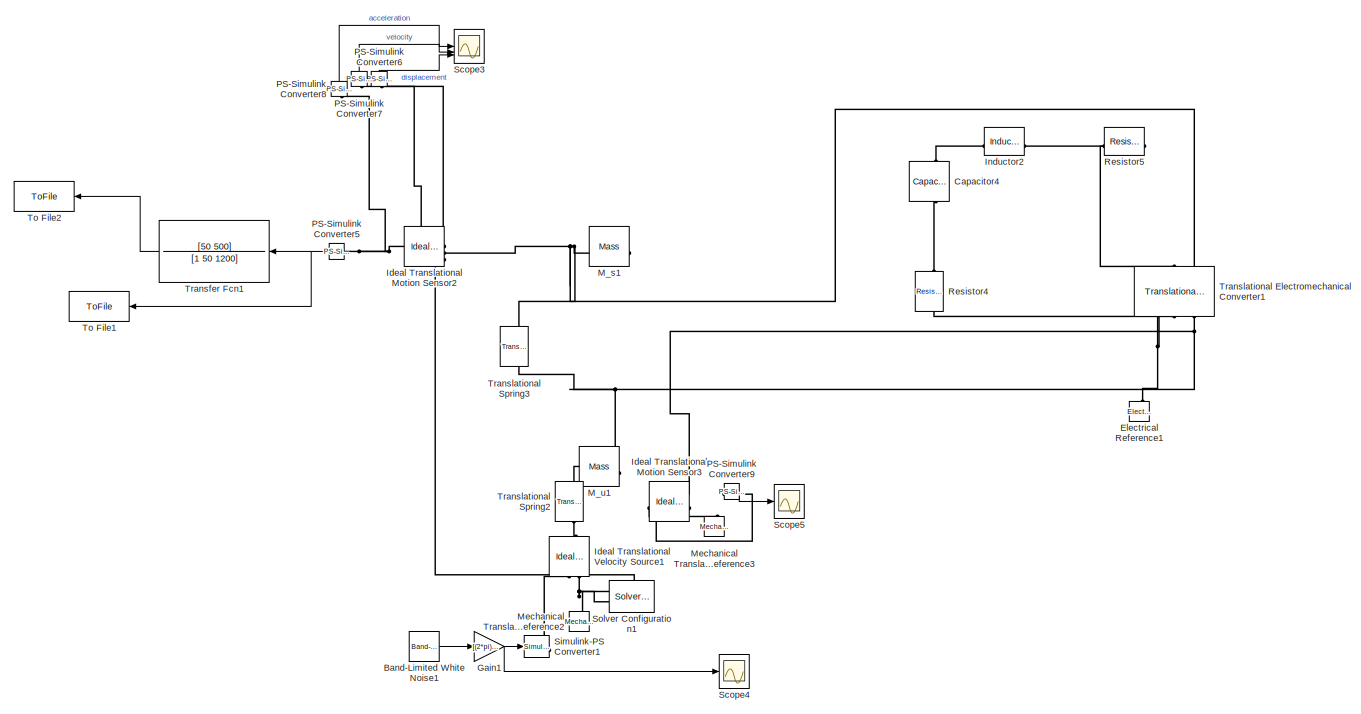
[diagram: root canvas - part 1/10, top left region]
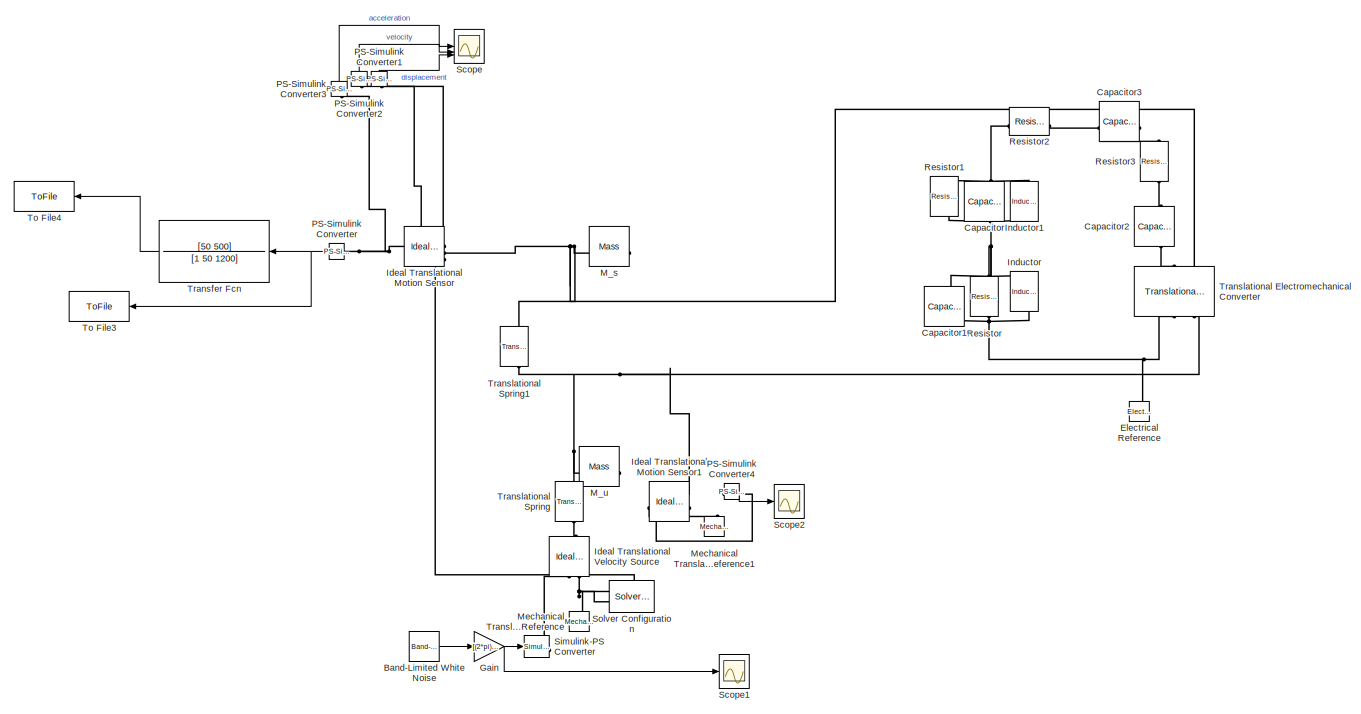
[diagram: root canvas - part 2/10, top left region]
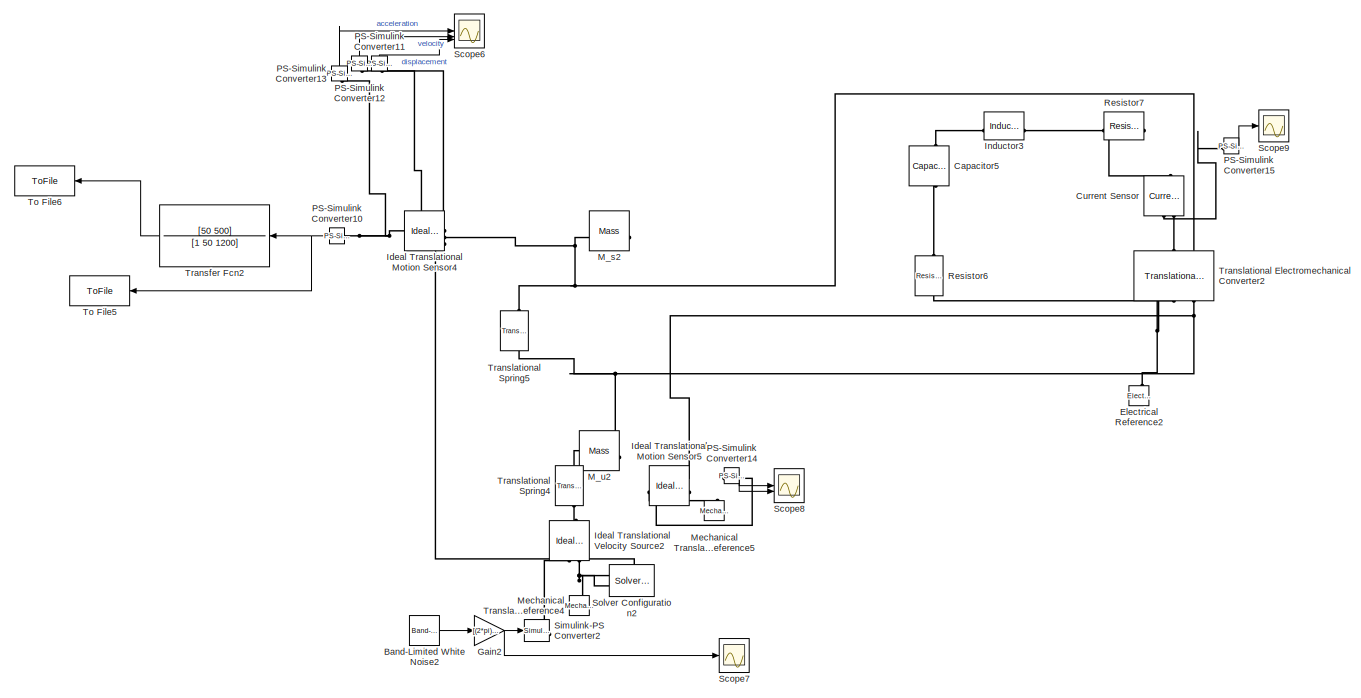
[diagram: root canvas - part 3/10, top center region]
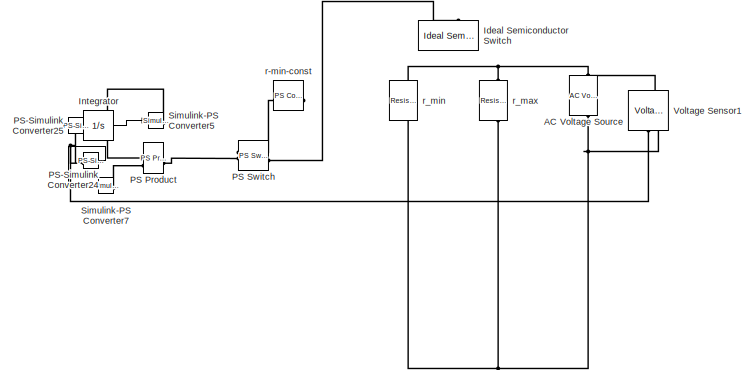
[diagram: root canvas - part 4/10, middle right region]
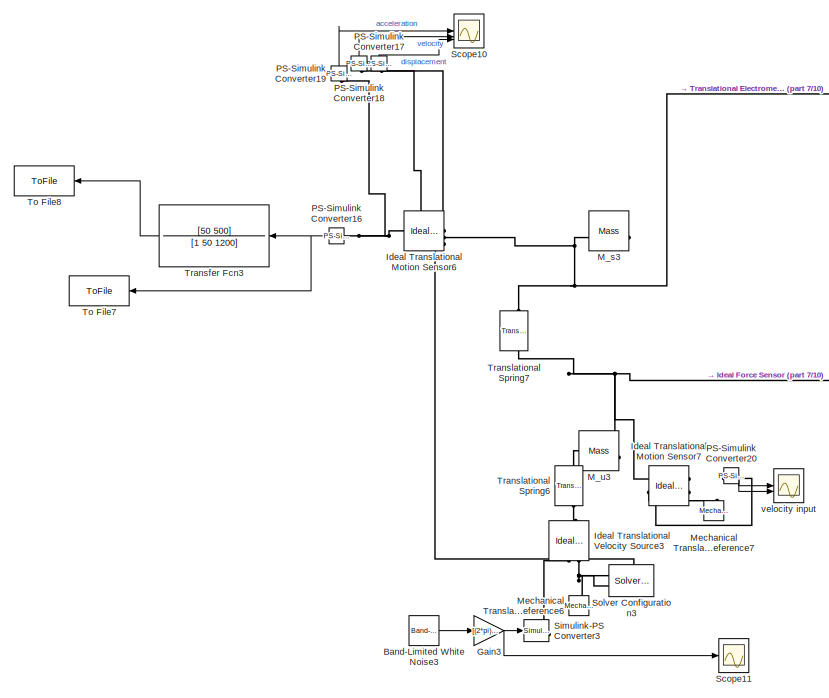
[diagram: root canvas - part 5/10, central region]
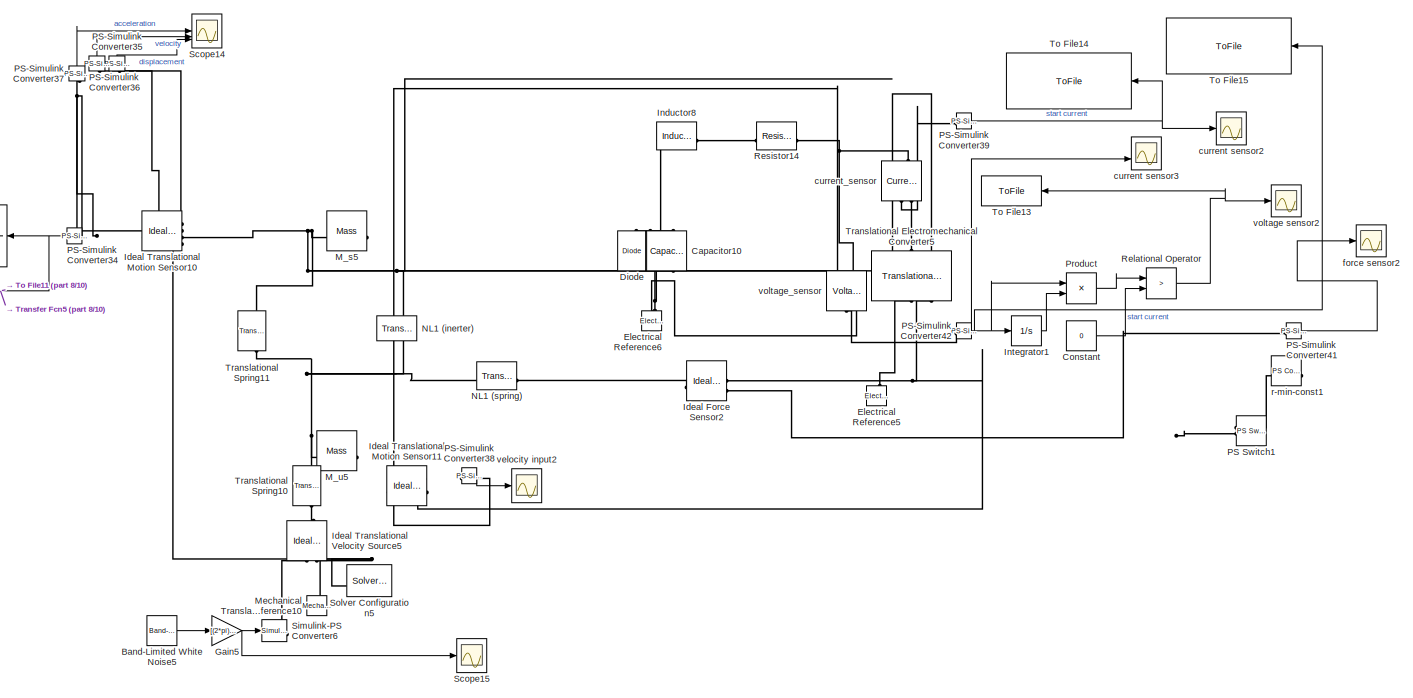
[diagram: root canvas - part 6/10, central region]
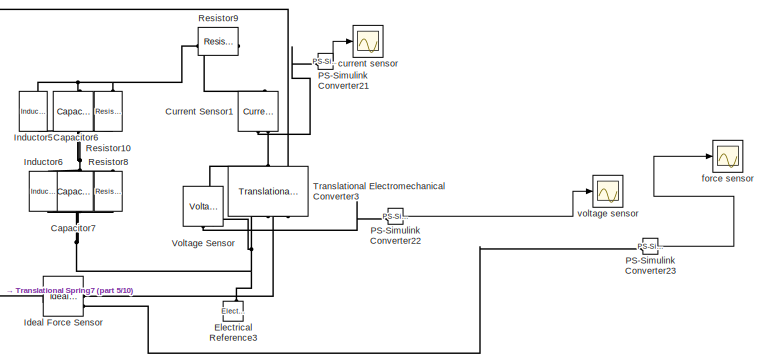
[diagram: root canvas - part 7/10, middle right region]
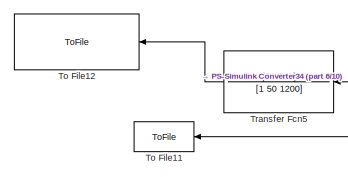
[diagram: root canvas - part 8/10, middle left region]
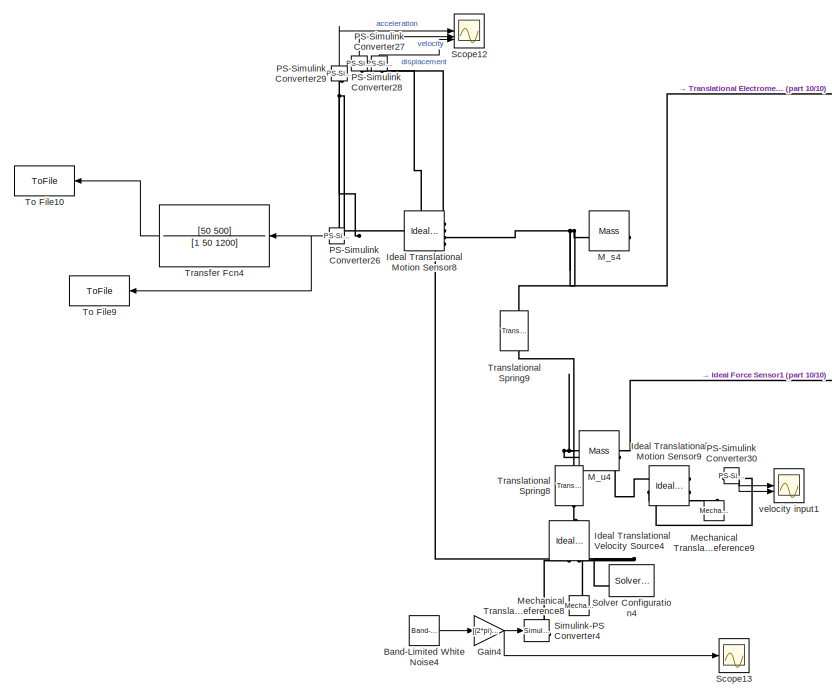
[diagram: root canvas - part 9/10, bottom center region]
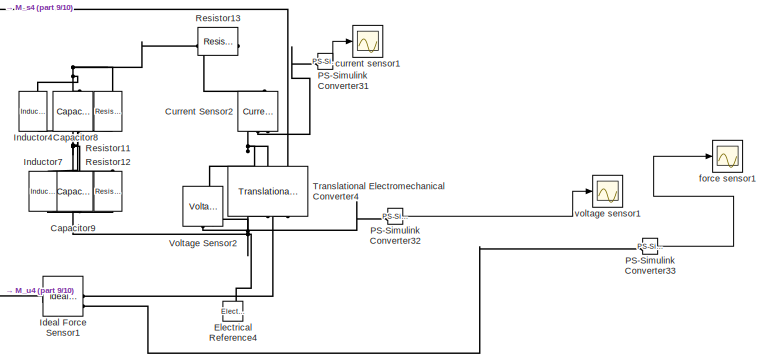
[diagram: root canvas - part 10/10, bottom right region]
MODEL slx_63086bcd27d9
KIND model
CONFIG AbsTol = auto
CONFIG EnableMultiTasking = off
CONFIG FixedStep = 0.0001
CONFIG MaxStep = 0.01
CONFIG MinStep = auto
CONFIG RelTol = 1e-3
CONFIG SampleTimeConstraint = Unconstrained
CONFIG SolverName = ode23t
CONFIG StartTime = 0.0
CONFIG StopTime = 100
BLOCK [Reference] AC Voltage Source  REF=fl_lib/Electrical/Electrical Sources/AC Voltage Source
  Commented = on
  NameLocation = right
  SourceBlock = fl_lib/Electrical/Electrical Sources/AC Voltage Source
  SourceType = AC Voltage Source
BLOCK [Reference] Band-Limited White Noise  REF=simulink/Sources/Band-Limited
White Noise
  Commented = on
  SourceBlock = simulink/Sources/Band-Limited\nWhite Noise
  SourceType = Band-Limited White Noise.
BLOCK [Reference] Band-Limited White Noise1  REF=simulink/Sources/Band-Limited
White Noise
  Commented = on
  SourceBlock = simulink/Sources/Band-Limited\nWhite Noise
  SourceType = Band-Limited White Noise.
BLOCK [Reference] Band-Limited White Noise2  REF=simulink/Sources/Band-Limited
White Noise
  Commented = on
  SourceBlock = simulink/Sources/Band-Limited\nWhite Noise
  SourceType = Band-Limited White Noise.
BLOCK [Reference] Band-Limited White Noise3  REF=simulink/Sources/Band-Limited
White Noise
  Commented = on
  SourceBlock = simulink/Sources/Band-Limited\nWhite Noise
  SourceType = Band-Limited White Noise.
BLOCK [Reference] Band-Limited White Noise4  REF=simulink/Sources/Band-Limited
White Noise
  Commented = on
  SourceBlock = simulink/Sources/Band-Limited\nWhite Noise
  SourceType = Band-Limited White Noise.
BLOCK [Reference] Band-Limited White Noise5  REF=simulink/Sources/Band-Limited
White Noise
  SourceBlock = simulink/Sources/Band-Limited\nWhite Noise
  SourceType = Band-Limited White Noise.
BLOCK [Reference] Capacitor  REF=fl_lib/Electrical/Electrical Elements/Capacitor
  Commented = on
  NameLocation = left
  SourceBlock = fl_lib/Electrical/Electrical Elements/Capacitor
  SourceType = Capacitor
BLOCK [Reference] Capacitor1  REF=fl_lib/Electrical/Electrical Elements/Capacitor
  Commented = on
  NameLocation = left
  SourceBlock = fl_lib/Electrical/Electrical Elements/Capacitor
  SourceType = Capacitor
BLOCK [Reference] Capacitor10  REF=fl_lib/Electrical/Electrical Elements/Capacitor
  NameLocation = left
  SourceBlock = fl_lib/Electrical/Electrical Elements/Capacitor
  SourceType = Capacitor
BLOCK [Reference] Capacitor2  REF=fl_lib/Electrical/Electrical Elements/Capacitor
  Commented = on
  NameLocation = right
  SourceBlock = fl_lib/Electrical/Electrical Elements/Capacitor
  SourceType = Capacitor
BLOCK [Reference] Capacitor3  REF=fl_lib/Electrical/Electrical Elements/Capacitor
  Commented = on
  NameLocation = top
  SourceBlock = fl_lib/Electrical/Electrical Elements/Capacitor
  SourceType = Capacitor
BLOCK [Reference] Capacitor4  REF=fl_lib/Electrical/Electrical Elements/Capacitor
  Commented = on
  NameLocation = left
  SourceBlock = fl_lib/Electrical/Electrical Elements/Capacitor
  SourceType = Capacitor
BLOCK [Reference] Capacitor5  REF=fl_lib/Electrical/Electrical Elements/Capacitor
  Commented = on
  NameLocation = left
  SourceBlock = fl_lib/Electrical/Electrical Elements/Capacitor
  SourceType = Capacitor
BLOCK [Reference] Capacitor6  REF=fl_lib/Electrical/Electrical Elements/Capacitor
  Commented = on
  NameLocation = left
  SourceBlock = fl_lib/Electrical/Electrical Elements/Capacitor
  SourceType = Capacitor
BLOCK [Reference] Capacitor7  REF=fl_lib/Electrical/Electrical Elements/Capacitor
  Commented = on
  NameLocation = left
  SourceBlock = fl_lib/Electrical/Electrical Elements/Capacitor
  SourceType = Capacitor
BLOCK [Reference] Capacitor8  REF=fl_lib/Electrical/Electrical Elements/Capacitor
  Commented = on
  NameLocation = left
  SourceBlock = fl_lib/Electrical/Electrical Elements/Capacitor
  SourceType = Capacitor
BLOCK [Reference] Capacitor9  REF=fl_lib/Electrical/Electrical Elements/Capacitor
  Commented = on
  NameLocation = left
  SourceBlock = fl_lib/Electrical/Electrical Elements/Capacitor
  SourceType = Capacitor
BLOCK [Constant] Constant
  Value = 0
BLOCK [Reference] Current Sensor  REF=fl_lib/Electrical/Electrical Sensors/Current Sensor
  Commented = on
  NameLocation = left
  SourceBlock = fl_lib/Electrical/Electrical Sensors/Current Sensor
  SourceType = Current Sensor
BLOCK [Reference] Current Sensor1  REF=fl_lib/Electrical/Electrical Sensors/Current Sensor
  Commented = on
  NameLocation = left
  SourceBlock = fl_lib/Electrical/Electrical Sensors/Current Sensor
  SourceType = Current Sensor
BLOCK [Reference] Current Sensor2  REF=fl_lib/Electrical/Electrical Sensors/Current Sensor
  Commented = on
  NameLocation = left
  SourceBlock = fl_lib/Electrical/Electrical Sensors/Current Sensor
  SourceType = Current Sensor
BLOCK [Reference] Diode  REF=fl_lib/Electrical/Electrical Elements/Diode
  NameLocation = left
  SourceBlock = fl_lib/Electrical/Electrical Elements/Diode
  SourceType = Diode
BLOCK [Reference] Electrical Reference  REF=fl_lib/Electrical/Electrical Elements/Electrical Reference
  Commented = on
  NameLocation = right
  SourceBlock = fl_lib/Electrical/Electrical Elements/Electrical Reference
  SourceType = Electrical Reference
BLOCK [Reference] Electrical Reference1  REF=fl_lib/Electrical/Electrical Elements/Electrical Reference
  Commented = on
  NameLocation = right
  SourceBlock = fl_lib/Electrical/Electrical Elements/Electrical Reference
  SourceType = Electrical Reference
BLOCK [Reference] Electrical Reference2  REF=fl_lib/Electrical/Electrical Elements/Electrical Reference
  Commented = on
  NameLocation = right
  SourceBlock = fl_lib/Electrical/Electrical Elements/Electrical Reference
  SourceType = Electrical Reference
BLOCK [Reference] Electrical Reference3  REF=fl_lib/Electrical/Electrical Elements/Electrical Reference
  Commented = on
  NameLocation = right
  SourceBlock = fl_lib/Electrical/Electrical Elements/Electrical Reference
  SourceType = Electrical Reference
BLOCK [Reference] Electrical Reference4  REF=fl_lib/Electrical/Electrical Elements/Electrical Reference
  Commented = on
  NameLocation = right
  SourceBlock = fl_lib/Electrical/Electrical Elements/Electrical Reference
  SourceType = Electrical Reference
BLOCK [Reference] Electrical Reference5  REF=fl_lib/Electrical/Electrical Elements/Electrical Reference
  NameLocation = right
  SourceBlock = fl_lib/Electrical/Electrical Elements/Electrical Reference
  SourceType = Electrical Reference
BLOCK [Reference] Electrical Reference6  REF=fl_lib/Electrical/Electrical Elements/Electrical Reference
  NameLocation = right
  SourceBlock = fl_lib/Electrical/Electrical Elements/Electrical Reference
  SourceType = Electrical Reference
BLOCK [Gain] Gain
  Commented = on
  Gain = [(2*pi)*(25*5*10^-7)^0.5]
BLOCK [Gain] Gain1
  Commented = on
  Gain = [(2*pi)*(25*5*10^-7)^0.5]
BLOCK [Gain] Gain2
  Commented = on
  Gain = [(2*pi)*(25*5*10^-7)^0.5]
BLOCK [Gain] Gain3
  Commented = on
  Gain = [(2*pi)*(25*5*10^-7)^0.5]
BLOCK [Gain] Gain4
  Commented = on
  Gain = [(2*pi)*(25*5*10^-7)^0.5]
BLOCK [Gain] Gain5
  Gain = [(2*pi)*(25*5*10^-7)^0.5]
BLOCK [Reference] Ideal Force Sensor  REF=fl_lib/Mechanical/Mechanical Sensors/Ideal Force Sensor
  Commented = on
  SourceBlock = fl_lib/Mechanical/Mechanical Sensors/Ideal Force Sensor
  SourceType = Ideal Force Sensor
BLOCK [Reference] Ideal Force Sensor1  REF=fl_lib/Mechanical/Mechanical Sensors/Ideal Force Sensor
  Commented = on
  SourceBlock = fl_lib/Mechanical/Mechanical Sensors/Ideal Force Sensor
  SourceType = Ideal Force Sensor
BLOCK [Reference] Ideal Force Sensor2  REF=fl_lib/Mechanical/Mechanical Sensors/Ideal Force Sensor
  SourceBlock = fl_lib/Mechanical/Mechanical Sensors/Ideal Force Sensor
  SourceType = Ideal Force Sensor
BLOCK [Reference] Ideal Semiconductor Switch  REF=ee_lib/Semiconductors &
Converters/Ideal Semiconductor
Switch
  Commented = on
  NameLocation = left
  SourceBlock = ee_lib/Semiconductors &\nConverters/Ideal Semiconductor\nSwitch
  SourceType = Ideal Semiconductor\nSwitch
BLOCK [Reference] Ideal Translational Motion Sensor  REF=fl_lib/Mechanical/Mechanical Sensors/Ideal Translational
Motion Sensor
  Commented = on
  NameLocation = top
  SourceBlock = fl_lib/Mechanical/Mechanical Sensors/Ideal Translational\nMotion Sensor
  SourceType = Ideal Translational\nMotion Sensor
BLOCK [Reference] Ideal Translational Motion Sensor1  REF=fl_lib/Mechanical/Mechanical Sensors/Ideal Translational
Motion Sensor
  Commented = on
  NameLocation = top
  SourceBlock = fl_lib/Mechanical/Mechanical Sensors/Ideal Translational\nMotion Sensor
  SourceType = Ideal Translational\nMotion Sensor
BLOCK [Reference] Ideal Translational Motion Sensor10  REF=fl_lib/Mechanical/Mechanical Sensors/Ideal Translational
Motion Sensor
  NameLocation = top
  SourceBlock = fl_lib/Mechanical/Mechanical Sensors/Ideal Translational\nMotion Sensor
  SourceType = Ideal Translational\nMotion Sensor
BLOCK [Reference] Ideal Translational Motion Sensor11  REF=fl_lib/Mechanical/Mechanical Sensors/Ideal Translational
Motion Sensor
  NameLocation = top
  SourceBlock = fl_lib/Mechanical/Mechanical Sensors/Ideal Translational\nMotion Sensor
  SourceType = Ideal Translational\nMotion Sensor
BLOCK [Reference] Ideal Translational Motion Sensor2  REF=fl_lib/Mechanical/Mechanical Sensors/Ideal Translational
Motion Sensor
  Commented = on
  NameLocation = top
  SourceBlock = fl_lib/Mechanical/Mechanical Sensors/Ideal Translational\nMotion Sensor
  SourceType = Ideal Translational\nMotion Sensor
BLOCK [Reference] Ideal Translational Motion Sensor3  REF=fl_lib/Mechanical/Mechanical Sensors/Ideal Translational
Motion Sensor
  Commented = on
  NameLocation = top
  SourceBlock = fl_lib/Mechanical/Mechanical Sensors/Ideal Translational\nMotion Sensor
  SourceType = Ideal Translational\nMotion Sensor
BLOCK [Reference] Ideal Translational Motion Sensor4  REF=fl_lib/Mechanical/Mechanical Sensors/Ideal Translational
Motion Sensor
  Commented = on
  NameLocation = top
  SourceBlock = fl_lib/Mechanical/Mechanical Sensors/Ideal Translational\nMotion Sensor
  SourceType = Ideal Translational\nMotion Sensor
BLOCK [Reference] Ideal Translational Motion Sensor5  REF=fl_lib/Mechanical/Mechanical Sensors/Ideal Translational
Motion Sensor
  Commented = on
  NameLocation = top
  SourceBlock = fl_lib/Mechanical/Mechanical Sensors/Ideal Translational\nMotion Sensor
  SourceType = Ideal Translational\nMotion Sensor
BLOCK [Reference] Ideal Translational Motion Sensor6  REF=fl_lib/Mechanical/Mechanical Sensors/Ideal Translational
Motion Sensor
  Commented = on
  NameLocation = top
  SourceBlock = fl_lib/Mechanical/Mechanical Sensors/Ideal Translational\nMotion Sensor
  SourceType = Ideal Translational\nMotion Sensor
BLOCK [Reference] Ideal Translational Motion Sensor7  REF=fl_lib/Mechanical/Mechanical Sensors/Ideal Translational
Motion Sensor
  Commented = on
  NameLocation = top
  SourceBlock = fl_lib/Mechanical/Mechanical Sensors/Ideal Translational\nMotion Sensor
  SourceType = Ideal Translational\nMotion Sensor
BLOCK [Reference] Ideal Translational Motion Sensor8  REF=fl_lib/Mechanical/Mechanical Sensors/Ideal Translational
Motion Sensor
  Commented = on
  NameLocation = top
  SourceBlock = fl_lib/Mechanical/Mechanical Sensors/Ideal Translational\nMotion Sensor
  SourceType = Ideal Translational\nMotion Sensor
BLOCK [Reference] Ideal Translational Motion Sensor9  REF=fl_lib/Mechanical/Mechanical Sensors/Ideal Translational
Motion Sensor
  Commented = on
  NameLocation = top
  SourceBlock = fl_lib/Mechanical/Mechanical Sensors/Ideal Translational\nMotion Sensor
  SourceType = Ideal Translational\nMotion Sensor
BLOCK [Reference] Ideal Translational Velocity Source  REF=fl_lib/Mechanical/Mechanical Sources/Ideal Translational
Velocity Source
  Commented = on
  NameLocation = right
  SourceBlock = fl_lib/Mechanical/Mechanical Sources/Ideal Translational\nVelocity Source
  SourceType = Ideal Translational\nVelocity Source
BLOCK [Reference] Ideal Translational Velocity Source1  REF=fl_lib/Mechanical/Mechanical Sources/Ideal Translational
Velocity Source
  Commented = on
  NameLocation = right
  SourceBlock = fl_lib/Mechanical/Mechanical Sources/Ideal Translational\nVelocity Source
  SourceType = Ideal Translational\nVelocity Source
BLOCK [Reference] Ideal Translational Velocity Source2  REF=fl_lib/Mechanical/Mechanical Sources/Ideal Translational
Velocity Source
  Commented = on
  NameLocation = right
  SourceBlock = fl_lib/Mechanical/Mechanical Sources/Ideal Translational\nVelocity Source
  SourceType = Ideal Translational\nVelocity Source
BLOCK [Reference] Ideal Translational Velocity Source3  REF=fl_lib/Mechanical/Mechanical Sources/Ideal Translational
Velocity Source
  Commented = on
  NameLocation = right
  SourceBlock = fl_lib/Mechanical/Mechanical Sources/Ideal Translational\nVelocity Source
  SourceType = Ideal Translational\nVelocity Source
BLOCK [Reference] Ideal Translational Velocity Source4  REF=fl_lib/Mechanical/Mechanical Sources/Ideal Translational
Velocity Source
  Commented = on
  NameLocation = right
  SourceBlock = fl_lib/Mechanical/Mechanical Sources/Ideal Translational\nVelocity Source
  SourceType = Ideal Translational\nVelocity Source
BLOCK [Reference] Ideal Translational Velocity Source5  REF=fl_lib/Mechanical/Mechanical Sources/Ideal Translational
Velocity Source
  NameLocation = right
  SourceBlock = fl_lib/Mechanical/Mechanical Sources/Ideal Translational\nVelocity Source
  SourceType = Ideal Translational\nVelocity Source
BLOCK [Reference] Inductor  REF=fl_lib/Electrical/Electrical Elements/Inductor
  Commented = on
  NameLocation = left
  SourceBlock = fl_lib/Electrical/Electrical Elements/Inductor
  SourceType = Inductor
BLOCK [Reference] Inductor1  REF=fl_lib/Electrical/Electrical Elements/Inductor
  Commented = on
  NameLocation = left
  SourceBlock = fl_lib/Electrical/Electrical Elements/Inductor
  SourceType = Inductor
BLOCK [Reference] Inductor2  REF=fl_lib/Electrical/Electrical Elements/Inductor
  Commented = on
  SourceBlock = fl_lib/Electrical/Electrical Elements/Inductor
  SourceType = Inductor
BLOCK [Reference] Inductor3  REF=fl_lib/Electrical/Electrical Elements/Inductor
  Commented = on
  SourceBlock = fl_lib/Electrical/Electrical Elements/Inductor
  SourceType = Inductor
BLOCK [Reference] Inductor4  REF=fl_lib/Electrical/Electrical Elements/Inductor
  Commented = on
  NameLocation = right
  SourceBlock = fl_lib/Electrical/Electrical Elements/Inductor
  SourceType = Inductor
BLOCK [Reference] Inductor5  REF=fl_lib/Electrical/Electrical Elements/Inductor
  Commented = on
  NameLocation = right
  SourceBlock = fl_lib/Electrical/Electrical Elements/Inductor
  SourceType = Inductor
BLOCK [Reference] Inductor6  REF=fl_lib/Electrical/Electrical Elements/Inductor
  Commented = on
  NameLocation = right
  SourceBlock = fl_lib/Electrical/Electrical Elements/Inductor
  SourceType = Inductor
BLOCK [Reference] Inductor7  REF=fl_lib/Electrical/Electrical Elements/Inductor
  Commented = on
  NameLocation = right
  SourceBlock = fl_lib/Electrical/Electrical Elements/Inductor
  SourceType = Inductor
BLOCK [Reference] Inductor8  REF=fl_lib/Electrical/Electrical Elements/Inductor
  SourceBlock = fl_lib/Electrical/Electrical Elements/Inductor
  SourceType = Inductor
BLOCK [Integrator] Integrator
  Commented = on
BLOCK [Integrator] Integrator1
BLOCK [Reference] M_s  REF=fl_lib/Mechanical/Translational
Elements/Mass
  Commented = on
  NameLocation = top
  SourceBlock = fl_lib/Mechanical/Translational\nElements/Mass
  SourceType = Mass
BLOCK [Reference] M_s1  REF=fl_lib/Mechanical/Translational
Elements/Mass
  Commented = on
  NameLocation = top
  SourceBlock = fl_lib/Mechanical/Translational\nElements/Mass
  SourceType = Mass
BLOCK [Reference] M_s2  REF=fl_lib/Mechanical/Translational
Elements/Mass
  Commented = on
  NameLocation = top
  SourceBlock = fl_lib/Mechanical/Translational\nElements/Mass
  SourceType = Mass
BLOCK [Reference] M_s3  REF=fl_lib/Mechanical/Translational
Elements/Mass
  Commented = on
  NameLocation = top
  SourceBlock = fl_lib/Mechanical/Translational\nElements/Mass
  SourceType = Mass
BLOCK [Reference] M_s4  REF=fl_lib/Mechanical/Translational
Elements/Mass
  Commented = on
  NameLocation = top
  SourceBlock = fl_lib/Mechanical/Translational\nElements/Mass
  SourceType = Mass
BLOCK [Reference] M_s5  REF=fl_lib/Mechanical/Translational
Elements/Mass
  NameLocation = top
  SourceBlock = fl_lib/Mechanical/Translational\nElements/Mass
  SourceType = Mass
BLOCK [Reference] M_u  REF=fl_lib/Mechanical/Translational
Elements/Mass
  Commented = on
  NameLocation = top
  SourceBlock = fl_lib/Mechanical/Translational\nElements/Mass
  SourceType = Mass
BLOCK [Reference] M_u1  REF=fl_lib/Mechanical/Translational
Elements/Mass
  Commented = on
  NameLocation = top
  SourceBlock = fl_lib/Mechanical/Translational\nElements/Mass
  SourceType = Mass
BLOCK [Reference] M_u2  REF=fl_lib/Mechanical/Translational
Elements/Mass
  Commented = on
  NameLocation = top
  SourceBlock = fl_lib/Mechanical/Translational\nElements/Mass
  SourceType = Mass
BLOCK [Reference] M_u3  REF=fl_lib/Mechanical/Translational
Elements/Mass
  Commented = on
  NameLocation = top
  SourceBlock = fl_lib/Mechanical/Translational\nElements/Mass
  SourceType = Mass
BLOCK [Reference] M_u4  REF=fl_lib/Mechanical/Translational
Elements/Mass
  Commented = on
  NameLocation = top
  SourceBlock = fl_lib/Mechanical/Translational\nElements/Mass
  SourceType = Mass
BLOCK [Reference] M_u5  REF=fl_lib/Mechanical/Translational
Elements/Mass
  NameLocation = top
  SourceBlock = fl_lib/Mechanical/Translational\nElements/Mass
  SourceType = Mass
BLOCK [Reference] Mechanical Translational Reference  REF=fl_lib/Mechanical/Translational
Elements/Mechanical
Translational
Reference
  Commented = on
  NameLocation = right
  SourceBlock = fl_lib/Mechanical/Translational\nElements/Mechanical\nTranslational\nReference
  SourceType = Mechanical\nTranslational\nReference
BLOCK [Reference] Mechanical Translational Reference1  REF=fl_lib/Mechanical/Translational
Elements/Mechanical
Translational
Reference
  Commented = on
  NameLocation = right
  SourceBlock = fl_lib/Mechanical/Translational\nElements/Mechanical\nTranslational\nReference
  SourceType = Mechanical\nTranslational\nReference
BLOCK [Reference] Mechanical Translational Reference10  REF=fl_lib/Mechanical/Translational
Elements/Mechanical
Translational
Reference
  NameLocation = right
  SourceBlock = fl_lib/Mechanical/Translational\nElements/Mechanical\nTranslational\nReference
  SourceType = Mechanical\nTranslational\nReference
BLOCK [Reference] Mechanical Translational Reference2  REF=fl_lib/Mechanical/Translational
Elements/Mechanical
Translational
Reference
  Commented = on
  NameLocation = right
  SourceBlock = fl_lib/Mechanical/Translational\nElements/Mechanical\nTranslational\nReference
  SourceType = Mechanical\nTranslational\nReference
BLOCK [Reference] Mechanical Translational Reference3  REF=fl_lib/Mechanical/Translational
Elements/Mechanical
Translational
Reference
  Commented = on
  NameLocation = right
  SourceBlock = fl_lib/Mechanical/Translational\nElements/Mechanical\nTranslational\nReference
  SourceType = Mechanical\nTranslational\nReference
BLOCK [Reference] Mechanical Translational Reference4  REF=fl_lib/Mechanical/Translational
Elements/Mechanical
Translational
Reference
  Commented = on
  NameLocation = right
  SourceBlock = fl_lib/Mechanical/Translational\nElements/Mechanical\nTranslational\nReference
  SourceType = Mechanical\nTranslational\nReference
BLOCK [Reference] Mechanical Translational Reference5  REF=fl_lib/Mechanical/Translational
Elements/Mechanical
Translational
Reference
  Commented = on
  NameLocation = right
  SourceBlock = fl_lib/Mechanical/Translational\nElements/Mechanical\nTranslational\nReference
  SourceType = Mechanical\nTranslational\nReference
BLOCK [Reference] Mechanical Translational Reference6  REF=fl_lib/Mechanical/Translational
Elements/Mechanical
Translational
Reference
  Commented = on
  NameLocation = right
  SourceBlock = fl_lib/Mechanical/Translational\nElements/Mechanical\nTranslational\nReference
  SourceType = Mechanical\nTranslational\nReference
BLOCK [Reference] Mechanical Translational Reference7  REF=fl_lib/Mechanical/Translational
Elements/Mechanical
Translational
Reference
  Commented = on
  NameLocation = right
  SourceBlock = fl_lib/Mechanical/Translational\nElements/Mechanical\nTranslational\nReference
  SourceType = Mechanical\nTranslational\nReference
BLOCK [Reference] Mechanical Translational Reference8  REF=fl_lib/Mechanical/Translational
Elements/Mechanical
Translational
Reference
  Commented = on
  NameLocation = right
  SourceBlock = fl_lib/Mechanical/Translational\nElements/Mechanical\nTranslational\nReference
  SourceType = Mechanical\nTranslational\nReference
BLOCK [Reference] Mechanical Translational Reference9  REF=fl_lib/Mechanical/Translational
Elements/Mechanical
Translational
Reference
  Commented = on
  NameLocation = right
  SourceBlock = fl_lib/Mechanical/Translational\nElements/Mechanical\nTranslational\nReference
  SourceType = Mechanical\nTranslational\nReference
BLOCK [Reference] NL1 (inerter)  REF=fl_lib/Mechanical/Translational
Elements/Translational
Inerter
  NameLocation = left
  SourceBlock = fl_lib/Mechanical/Translational\nElements/Translational\nInerter
  SourceType = Translational\nInerter
BLOCK [Reference] NL1 (spring)  REF=fl_lib/Mechanical/Translational
Elements/Translational Spring
  SourceBlock = fl_lib/Mechanical/Translational\nElements/Translational Spring
  SourceType = Translational Spring
BLOCK [Reference] PS Product  REF=fl_lib/Physical Signals/Functions/PS Product
  Commented = on
  SourceBlock = fl_lib/Physical Signals/Functions/PS Product
  SourceType = PS Product
BLOCK [Reference] PS Switch  REF=fl_lib/Physical Signals/Nonlinear Operators/PS Switch
  Commented = on
  SourceBlock = fl_lib/Physical Signals/Nonlinear Operators/PS Switch
  SourceType = PS Switch
BLOCK [Reference] PS Switch1  REF=fl_lib/Physical Signals/Nonlinear Operators/PS Switch
  Commented = on
  SourceBlock = fl_lib/Physical Signals/Nonlinear Operators/PS Switch
  SourceType = PS Switch
BLOCK [Reference] PS-Simulink Converter  REF=nesl_utility/PS-Simulink
Converter
  Commented = on
  NameLocation = top
  SourceBlock = nesl_utility/PS-Simulink\nConverter
  SourceType = PS-Simulink\nConverter
BLOCK [Reference] PS-Simulink Converter1  REF=nesl_utility/PS-Simulink
Converter
  Commented = on
  NameLocation = right
  SourceBlock = nesl_utility/PS-Simulink\nConverter
  SourceType = PS-Simulink\nConverter
BLOCK [Reference] PS-Simulink Converter10  REF=nesl_utility/PS-Simulink
Converter
  Commented = on
  NameLocation = top
  SourceBlock = nesl_utility/PS-Simulink\nConverter
  SourceType = PS-Simulink\nConverter
BLOCK [Reference] PS-Simulink Converter11  REF=nesl_utility/PS-Simulink
Converter
  Commented = on
  NameLocation = right
  SourceBlock = nesl_utility/PS-Simulink\nConverter
  SourceType = PS-Simulink\nConverter
BLOCK [Reference] PS-Simulink Converter12  REF=nesl_utility/PS-Simulink
Converter
  Commented = on
  NameLocation = right
  SourceBlock = nesl_utility/PS-Simulink\nConverter
  SourceType = PS-Simulink\nConverter
BLOCK [Reference] PS-Simulink Converter13  REF=nesl_utility/PS-Simulink
Converter
  Commented = on
  NameLocation = right
  SourceBlock = nesl_utility/PS-Simulink\nConverter
  SourceType = PS-Simulink\nConverter
BLOCK [Reference] PS-Simulink Converter14  REF=nesl_utility/PS-Simulink
Converter
  Commented = on
  SourceBlock = nesl_utility/PS-Simulink\nConverter
  SourceType = PS-Simulink\nConverter
BLOCK [Reference] PS-Simulink Converter15  REF=nesl_utility/PS-Simulink
Converter
  Commented = on
  SourceBlock = nesl_utility/PS-Simulink\nConverter
  SourceType = PS-Simulink\nConverter
BLOCK [Reference] PS-Simulink Converter16  REF=nesl_utility/PS-Simulink
Converter
  Commented = on
  NameLocation = top
  SourceBlock = nesl_utility/PS-Simulink\nConverter
  SourceType = PS-Simulink\nConverter
BLOCK [Reference] PS-Simulink Converter17  REF=nesl_utility/PS-Simulink
Converter
  Commented = on
  NameLocation = right
  SourceBlock = nesl_utility/PS-Simulink\nConverter
  SourceType = PS-Simulink\nConverter
BLOCK [Reference] PS-Simulink Converter18  REF=nesl_utility/PS-Simulink
Converter
  Commented = on
  NameLocation = right
  SourceBlock = nesl_utility/PS-Simulink\nConverter
  SourceType = PS-Simulink\nConverter
BLOCK [Reference] PS-Simulink Converter19  REF=nesl_utility/PS-Simulink
Converter
  Commented = on
  NameLocation = right
  SourceBlock = nesl_utility/PS-Simulink\nConverter
  SourceType = PS-Simulink\nConverter
BLOCK [Reference] PS-Simulink Converter2  REF=nesl_utility/PS-Simulink
Converter
  Commented = on
  NameLocation = right
  SourceBlock = nesl_utility/PS-Simulink\nConverter
  SourceType = PS-Simulink\nConverter
BLOCK [Reference] PS-Simulink Converter20  REF=nesl_utility/PS-Simulink
Converter
  Commented = on
  SourceBlock = nesl_utility/PS-Simulink\nConverter
  SourceType = PS-Simulink\nConverter
BLOCK [Reference] PS-Simulink Converter21  REF=nesl_utility/PS-Simulink
Converter
  Commented = on
  SourceBlock = nesl_utility/PS-Simulink\nConverter
  SourceType = PS-Simulink\nConverter
BLOCK [Reference] PS-Simulink Converter22  REF=nesl_utility/PS-Simulink
Converter
  Commented = on
  SourceBlock = nesl_utility/PS-Simulink\nConverter
  SourceType = PS-Simulink\nConverter
BLOCK [Reference] PS-Simulink Converter23  REF=nesl_utility/PS-Simulink
Converter
  Commented = on
  SourceBlock = nesl_utility/PS-Simulink\nConverter
  SourceType = PS-Simulink\nConverter
BLOCK [Reference] PS-Simulink Converter24  REF=nesl_utility/PS-Simulink
Converter
  Commented = on
  SourceBlock = nesl_utility/PS-Simulink\nConverter
  SourceType = PS-Simulink\nConverter
BLOCK [Reference] PS-Simulink Converter25  REF=nesl_utility/PS-Simulink
Converter
  Commented = on
  SourceBlock = nesl_utility/PS-Simulink\nConverter
  SourceType = PS-Simulink\nConverter
BLOCK [Reference] PS-Simulink Converter26  REF=nesl_utility/PS-Simulink
Converter
  Commented = on
  NameLocation = top
  SourceBlock = nesl_utility/PS-Simulink\nConverter
  SourceType = PS-Simulink\nConverter
BLOCK [Reference] PS-Simulink Converter27  REF=nesl_utility/PS-Simulink
Converter
  Commented = on
  NameLocation = right
  SourceBlock = nesl_utility/PS-Simulink\nConverter
  SourceType = PS-Simulink\nConverter
BLOCK [Reference] PS-Simulink Converter28  REF=nesl_utility/PS-Simulink
Converter
  Commented = on
  NameLocation = right
  SourceBlock = nesl_utility/PS-Simulink\nConverter
  SourceType = PS-Simulink\nConverter
BLOCK [Reference] PS-Simulink Converter29  REF=nesl_utility/PS-Simulink
Converter
  Commented = on
  NameLocation = right
  SourceBlock = nesl_utility/PS-Simulink\nConverter
  SourceType = PS-Simulink\nConverter
BLOCK [Reference] PS-Simulink Converter3  REF=nesl_utility/PS-Simulink
Converter
  Commented = on
  NameLocation = right
  SourceBlock = nesl_utility/PS-Simulink\nConverter
  SourceType = PS-Simulink\nConverter
BLOCK [Reference] PS-Simulink Converter30  REF=nesl_utility/PS-Simulink
Converter
  Commented = on
  SourceBlock = nesl_utility/PS-Simulink\nConverter
  SourceType = PS-Simulink\nConverter
BLOCK [Reference] PS-Simulink Converter31  REF=nesl_utility/PS-Simulink
Converter
  Commented = on
  SourceBlock = nesl_utility/PS-Simulink\nConverter
  SourceType = PS-Simulink\nConverter
BLOCK [Reference] PS-Simulink Converter32  REF=nesl_utility/PS-Simulink
Converter
  Commented = on
  SourceBlock = nesl_utility/PS-Simulink\nConverter
  SourceType = PS-Simulink\nConverter
BLOCK [Reference] PS-Simulink Converter33  REF=nesl_utility/PS-Simulink
Converter
  Commented = on
  SourceBlock = nesl_utility/PS-Simulink\nConverter
  SourceType = PS-Simulink\nConverter
BLOCK [Reference] PS-Simulink Converter34  REF=nesl_utility/PS-Simulink
Converter
  NameLocation = top
  SourceBlock = nesl_utility/PS-Simulink\nConverter
  SourceType = PS-Simulink\nConverter
BLOCK [Reference] PS-Simulink Converter35  REF=nesl_utility/PS-Simulink
Converter
  NameLocation = right
  SourceBlock = nesl_utility/PS-Simulink\nConverter
  SourceType = PS-Simulink\nConverter
BLOCK [Reference] PS-Simulink Converter36  REF=nesl_utility/PS-Simulink
Converter
  NameLocation = right
  SourceBlock = nesl_utility/PS-Simulink\nConverter
  SourceType = PS-Simulink\nConverter
BLOCK [Reference] PS-Simulink Converter37  REF=nesl_utility/PS-Simulink
Converter
  NameLocation = right
  SourceBlock = nesl_utility/PS-Simulink\nConverter
  SourceType = PS-Simulink\nConverter
BLOCK [Reference] PS-Simulink Converter38  REF=nesl_utility/PS-Simulink
Converter
  SourceBlock = nesl_utility/PS-Simulink\nConverter
  SourceType = PS-Simulink\nConverter
BLOCK [Reference] PS-Simulink Converter39  REF=nesl_utility/PS-Simulink
Converter
  SourceBlock = nesl_utility/PS-Simulink\nConverter
  SourceType = PS-Simulink\nConverter
BLOCK [Reference] PS-Simulink Converter4  REF=nesl_utility/PS-Simulink
Converter
  Commented = on
  SourceBlock = nesl_utility/PS-Simulink\nConverter
  SourceType = PS-Simulink\nConverter
BLOCK [Reference] PS-Simulink Converter41  REF=nesl_utility/PS-Simulink
Converter
  SourceBlock = nesl_utility/PS-Simulink\nConverter
  SourceType = PS-Simulink\nConverter
BLOCK [Reference] PS-Simulink Converter42  REF=nesl_utility/PS-Simulink
Converter
  SourceBlock = nesl_utility/PS-Simulink\nConverter
  SourceType = PS-Simulink\nConverter
BLOCK [Reference] PS-Simulink Converter5  REF=nesl_utility/PS-Simulink
Converter
  Commented = on
  NameLocation = top
  SourceBlock = nesl_utility/PS-Simulink\nConverter
  SourceType = PS-Simulink\nConverter
BLOCK [Reference] PS-Simulink Converter6  REF=nesl_utility/PS-Simulink
Converter
  Commented = on
  NameLocation = right
  SourceBlock = nesl_utility/PS-Simulink\nConverter
  SourceType = PS-Simulink\nConverter
BLOCK [Reference] PS-Simulink Converter7  REF=nesl_utility/PS-Simulink
Converter
  Commented = on
  NameLocation = right
  SourceBlock = nesl_utility/PS-Simulink\nConverter
  SourceType = PS-Simulink\nConverter
BLOCK [Reference] PS-Simulink Converter8  REF=nesl_utility/PS-Simulink
Converter
  Commented = on
  NameLocation = right
  SourceBlock = nesl_utility/PS-Simulink\nConverter
  SourceType = PS-Simulink\nConverter
BLOCK [Reference] PS-Simulink Converter9  REF=nesl_utility/PS-Simulink
Converter
  Commented = on
  SourceBlock = nesl_utility/PS-Simulink\nConverter
  SourceType = PS-Simulink\nConverter
BLOCK [Product] Product
BLOCK [RelationalOperator] Relational Operator
  InputSameDT = off
  Operator = >
  OutDataTypeStr = boolean
  RndMeth = Simplest
BLOCK [Reference] Resistor  REF=fl_lib/Electrical/Electrical Elements/Resistor
  Commented = on
  NameLocation = left
  SourceBlock = fl_lib/Electrical/Electrical Elements/Resistor
  SourceType = Resistor
BLOCK [Reference] Resistor1  REF=fl_lib/Electrical/Electrical Elements/Resistor
  Commented = on
  NameLocation = left
  SourceBlock = fl_lib/Electrical/Electrical Elements/Resistor
  SourceType = Resistor
BLOCK [Reference] Resistor10  REF=fl_lib/Electrical/Electrical Elements/Resistor
  Commented = on
  NameLocation = left
  SourceBlock = fl_lib/Electrical/Electrical Elements/Resistor
  SourceType = Resistor
BLOCK [Reference] Resistor11  REF=fl_lib/Electrical/Electrical Elements/Resistor
  Commented = on
  NameLocation = left
  SourceBlock = fl_lib/Electrical/Electrical Elements/Resistor
  SourceType = Resistor
BLOCK [Reference] Resistor12  REF=fl_lib/Electrical/Electrical Elements/Resistor
  Commented = on
  NameLocation = right
  SourceBlock = fl_lib/Electrical/Electrical Elements/Resistor
  SourceType = Resistor
BLOCK [Reference] Resistor13  REF=fl_lib/Electrical/Electrical Elements/Resistor
  Commented = on
  NameLocation = top
  SourceBlock = fl_lib/Electrical/Electrical Elements/Resistor
  SourceType = Resistor
BLOCK [Reference] Resistor14  REF=fl_lib/Electrical/Electrical Elements/Resistor
  NameLocation = top
  SourceBlock = fl_lib/Electrical/Electrical Elements/Resistor
  SourceType = Resistor
BLOCK [Reference] Resistor2  REF=fl_lib/Electrical/Electrical Elements/Resistor
  Commented = on
  NameLocation = top
  SourceBlock = fl_lib/Electrical/Electrical Elements/Resistor
  SourceType = Resistor
BLOCK [Reference] Resistor3  REF=fl_lib/Electrical/Electrical Elements/Resistor
  Commented = on
  NameLocation = right
  SourceBlock = fl_lib/Electrical/Electrical Elements/Resistor
  SourceType = Resistor
BLOCK [Reference] Resistor4  REF=fl_lib/Electrical/Electrical Elements/Resistor
  Commented = on
  NameLocation = left
  SourceBlock = fl_lib/Electrical/Electrical Elements/Resistor
  SourceType = Resistor
BLOCK [Reference] Resistor5  REF=fl_lib/Electrical/Electrical Elements/Resistor
  Commented = on
  NameLocation = top
  SourceBlock = fl_lib/Electrical/Electrical Elements/Resistor
  SourceType = Resistor
BLOCK [Reference] Resistor6  REF=fl_lib/Electrical/Electrical Elements/Resistor
  Commented = on
  NameLocation = left
  SourceBlock = fl_lib/Electrical/Electrical Elements/Resistor
  SourceType = Resistor
BLOCK [Reference] Resistor7  REF=fl_lib/Electrical/Electrical Elements/Resistor
  Commented = on
  NameLocation = top
  SourceBlock = fl_lib/Electrical/Electrical Elements/Resistor
  SourceType = Resistor
BLOCK [Reference] Resistor8  REF=fl_lib/Electrical/Electrical Elements/Resistor
  Commented = on
  NameLocation = right
  SourceBlock = fl_lib/Electrical/Electrical Elements/Resistor
  SourceType = Resistor
BLOCK [Reference] Resistor9  REF=fl_lib/Electrical/Electrical Elements/Resistor
  Commented = on
  NameLocation = top
  SourceBlock = fl_lib/Electrical/Electrical Elements/Resistor
  SourceType = Resistor
BLOCK [Scope] Scope
  Commented = on
  Floating = off
  NumInputPorts = 3
  ScopeSpecificationString = Simulink.scopes.TimeScopeBlockCfg('CurrentConfiguration', extmgr.ConfigurationSet(extmgr.Configuration('Core','General UI',true),extmgr.Configuration('Core','Source UI',true),extmgr.Configuration('Sources','WiredSimulink',true,'DataLoggingVariableName','ScopeData1'),extmgr.Configuration('Visuals','Time Domain',true,'SerializedDisplays',{struct('MinYLimReal','-12.59899','MaxYLimReal','13.4021','YLa...<+1515ch>
BLOCK [Scope] Scope1
  Commented = on
  Floating = off
  NumInputPorts = 3
  ScopeSpecificationString = Simulink.scopes.TimeScopeBlockCfg('CurrentConfiguration', extmgr.ConfigurationSet(extmgr.Configuration('Core','General UI',true),extmgr.Configuration('Core','Source UI',true),extmgr.Configuration('Sources','WiredSimulink',true,'DataLoggingVariableName','ScopeData2'),extmgr.Configuration('Visuals','Time Domain',true,'SerializedDisplays',{struct('MinYLimReal','-3.89035','MaxYLimReal','3.51061','YLab...<+1505ch>
BLOCK [Scope] Scope10
  Commented = on
  Floating = off
  NumInputPorts = 3
  ScopeSpecificationString = Simulink.scopes.TimeScopeBlockCfg('CurrentConfiguration', extmgr.ConfigurationSet(extmgr.Configuration('Core','General UI',true),extmgr.Configuration('Core','Source UI',true),extmgr.Configuration('Sources','WiredSimulink',true,'DataLoggingVariableName','ScopeData10'),extmgr.Configuration('Visuals','Time Domain',true,'SerializedDisplays',{struct('MinYLimReal','-4.1144','MaxYLimReal','4.47971','YLab...<+1556ch>
BLOCK [Scope] Scope11
  Commented = on
  Floating = off
  NumInputPorts = 3
  ScopeSpecificationString = Simulink.scopes.TimeScopeBlockCfg('CurrentConfiguration', extmgr.ConfigurationSet(extmgr.Configuration('Core','General UI',true),extmgr.Configuration('Core','Source UI',true),extmgr.Configuration('Sources','WiredSimulink',true,'DataLoggingVariableName','ScopeData11'),extmgr.Configuration('Visuals','Time Domain',true,'SerializedDisplays',{struct('MinYLimReal','-3.89035','MaxYLimReal','3.51061','YLa...<+1507ch>
BLOCK [Scope] Scope12
  Commented = on
  Floating = off
  NumInputPorts = 3
  ScopeSpecificationString = Simulink.scopes.TimeScopeBlockCfg('CurrentConfiguration', extmgr.ConfigurationSet(extmgr.Configuration('Core','General UI',true),extmgr.Configuration('Core','Source UI',true),extmgr.Configuration('Sources','WiredSimulink',true,'DataLoggingVariableName','ScopeData1'),extmgr.Configuration('Visuals','Time Domain',true,'SerializedDisplays',{struct('MinYLimReal','-4.1144','MaxYLimReal','4.47971','YLabe...<+1555ch>
BLOCK [Scope] Scope13
  Commented = on
  Floating = off
  NumInputPorts = 3
  ScopeSpecificationString = Simulink.scopes.TimeScopeBlockCfg('CurrentConfiguration', extmgr.ConfigurationSet(extmgr.Configuration('Core','General UI',true),extmgr.Configuration('Core','Source UI',true),extmgr.Configuration('Sources','WiredSimulink',true,'DataLoggingVariableName','ScopeData2'),extmgr.Configuration('Visuals','Time Domain',true,'SerializedDisplays',{struct('MinYLimReal','-3.89035','MaxYLimReal','3.51061','YLab...<+1506ch>
BLOCK [Scope] Scope14
  Floating = off
  NumInputPorts = 3
  ScopeSpecificationString = Simulink.scopes.TimeScopeBlockCfg('CurrentConfiguration', extmgr.ConfigurationSet(extmgr.Configuration('Core','General UI',true),extmgr.Configuration('Core','Source UI',true),extmgr.Configuration('Sources','WiredSimulink',true,'DataLoggingVariableName','ScopeData7'),extmgr.Configuration('Visuals','Time Domain',true,'SerializedDisplays',{struct('MinYLimReal','-14376341.22941','MaxYLimReal','9824431...<+1588ch>
BLOCK [Scope] Scope15
  Floating = off
  NumInputPorts = 3
  ScopeSpecificationString = Simulink.scopes.TimeScopeBlockCfg('CurrentConfiguration', extmgr.ConfigurationSet(extmgr.Configuration('Core','General UI',true),extmgr.Configuration('Core','Source UI',true),extmgr.Configuration('Sources','WiredSimulink',true,'DataLoggingVariableName','ScopeData8'),extmgr.Configuration('Visuals','Time Domain',true,'SerializedDisplays',{struct('MinYLimReal','-3.89035','MaxYLimReal','3.51061','YLab...<+1506ch>
BLOCK [Scope] Scope2
  Commented = on
  Floating = off
  NumInputPorts = 3
  ScopeSpecificationString = Simulink.scopes.TimeScopeBlockCfg('CurrentConfiguration', extmgr.ConfigurationSet(extmgr.Configuration('Core','General UI',true),extmgr.Configuration('Core','Source UI',true),extmgr.Configuration('Sources','WiredSimulink',true),extmgr.Configuration('Visuals','Time Domain',true,'SerializedDisplays',{struct('MinYLimReal','-2.80637','MaxYLimReal','2.6381','YLabelReal','','MinYLimMag','0.00000','MaxYL...<+1483ch>
BLOCK [Scope] Scope3
  Commented = on
  Floating = off
  NumInputPorts = 3
  ScopeSpecificationString = Simulink.scopes.TimeScopeBlockCfg('CurrentConfiguration', extmgr.ConfigurationSet(extmgr.Configuration('Core','General UI',true),extmgr.Configuration('Core','Source UI',true),extmgr.Configuration('Sources','WiredSimulink',true,'DataLoggingVariableName','ScopeData3'),extmgr.Configuration('Visuals','Time Domain',true,'SerializedDisplays',{struct('MinYLimReal','-4.50379','MaxYLimReal','4.44607','YLab...<+1513ch>
BLOCK [Scope] Scope4
  Commented = on
  Floating = off
  NumInputPorts = 3
  ScopeSpecificationString = Simulink.scopes.TimeScopeBlockCfg('CurrentConfiguration', extmgr.ConfigurationSet(extmgr.Configuration('Core','General UI',true),extmgr.Configuration('Core','Source UI',true),extmgr.Configuration('Sources','WiredSimulink',true,'DataLoggingVariableName','ScopeData4'),extmgr.Configuration('Visuals','Time Domain',true,'SerializedDisplays',{struct('MinYLimReal','-3.89035','MaxYLimReal','3.51061','YLab...<+1506ch>
BLOCK [Scope] Scope5
  Commented = on
  Floating = off
  NumInputPorts = 3
  ScopeSpecificationString = Simulink.scopes.TimeScopeBlockCfg('CurrentConfiguration', extmgr.ConfigurationSet(extmgr.Configuration('Core','General UI',true),extmgr.Configuration('Core','Source UI',true),extmgr.Configuration('Sources','WiredSimulink',true,'DataLoggingVariableName','ScopeData5'),extmgr.Configuration('Visuals','Time Domain',true,'SerializedDisplays',{struct('MinYLimReal','-0.82528','MaxYLimReal','0.85416','YLab...<+1524ch>
BLOCK [Scope] Scope6
  Commented = on
  Floating = off
  NumInputPorts = 3
  ScopeSpecificationString = Simulink.scopes.TimeScopeBlockCfg('CurrentConfiguration', extmgr.ConfigurationSet(extmgr.Configuration('Core','General UI',true),extmgr.Configuration('Core','Source UI',true),extmgr.Configuration('Sources','WiredSimulink',true,'DataLoggingVariableName','ScopeData6'),extmgr.Configuration('Visuals','Time Domain',true,'SerializedDisplays',{struct('MinYLimReal','-7.26803','MaxYLimReal','6.60389','YLab...<+1563ch>
BLOCK [Scope] Scope7
  Commented = on
  Floating = off
  NumInputPorts = 3
  ScopeSpecificationString = Simulink.scopes.TimeScopeBlockCfg('CurrentConfiguration', extmgr.ConfigurationSet(extmgr.Configuration('Core','General UI',true),extmgr.Configuration('Core','Source UI',true),extmgr.Configuration('Sources','WiredSimulink',true,'DataLoggingVariableName','ScopeData7'),extmgr.Configuration('Visuals','Time Domain',true,'SerializedDisplays',{struct('MinYLimReal','-3.89035','MaxYLimReal','3.51061','YLab...<+1506ch>
BLOCK [Scope] Scope8
  Commented = on
  Floating = off
  NumInputPorts = 3
  ScopeSpecificationString = Simulink.scopes.TimeScopeBlockCfg('CurrentConfiguration', extmgr.ConfigurationSet(extmgr.Configuration('Core','General UI',true),extmgr.Configuration('Core','Source UI',true),extmgr.Configuration('Sources','WiredSimulink',true,'DataLoggingVariableName','ScopeData8'),extmgr.Configuration('Visuals','Time Domain',true,'SerializedDisplays',{struct('MinYLimReal','-0.74429','MaxYLimReal','0.70575','YLab...<+1609ch>
BLOCK [Scope] Scope9
  Commented = on
  Floating = off
  NumInputPorts = 1
  ScopeSpecificationString = Simulink.scopes.TimeScopeBlockCfg('CurrentConfiguration', extmgr.ConfigurationSet(extmgr.Configuration('Core','General UI',true),extmgr.Configuration('Core','Source UI',true),extmgr.Configuration('Sources','WiredSimulink',true,'DataLoggingVariableName','ScopeData9'),extmgr.Configuration('Visuals','Time Domain',true,'SerializedDisplays',{struct('MinYLimReal','-5.28508','MaxYLimReal','5.71736','YLab...<+1522ch>
BLOCK [Reference] Simulink-PS Converter  REF=nesl_utility/Simulink-PS
Converter
  Commented = on
  NameLocation = left
  SourceBlock = nesl_utility/Simulink-PS\nConverter
  SourceType = Simulink-PS\nConverter
BLOCK [Reference] Simulink-PS Converter1  REF=nesl_utility/Simulink-PS
Converter
  Commented = on
  NameLocation = left
  SourceBlock = nesl_utility/Simulink-PS\nConverter
  SourceType = Simulink-PS\nConverter
BLOCK [Reference] Simulink-PS Converter2  REF=nesl_utility/Simulink-PS
Converter
  Commented = on
  NameLocation = left
  SourceBlock = nesl_utility/Simulink-PS\nConverter
  SourceType = Simulink-PS\nConverter
BLOCK [Reference] Simulink-PS Converter3  REF=nesl_utility/Simulink-PS
Converter
  Commented = on
  NameLocation = left
  SourceBlock = nesl_utility/Simulink-PS\nConverter
  SourceType = Simulink-PS\nConverter
BLOCK [Reference] Simulink-PS Converter4  REF=nesl_utility/Simulink-PS
Converter
  Commented = on
  NameLocation = left
  SourceBlock = nesl_utility/Simulink-PS\nConverter
  SourceType = Simulink-PS\nConverter
BLOCK [Reference] Simulink-PS Converter5  REF=nesl_utility/Simulink-PS
Converter
  Commented = on
  SourceBlock = nesl_utility/Simulink-PS\nConverter
  SourceType = Simulink-PS\nConverter
BLOCK [Reference] Simulink-PS Converter6  REF=nesl_utility/Simulink-PS
Converter
  NameLocation = left
  SourceBlock = nesl_utility/Simulink-PS\nConverter
  SourceType = Simulink-PS\nConverter
BLOCK [Reference] Simulink-PS Converter7  REF=nesl_utility/Simulink-PS
Converter
  Commented = on
  SourceBlock = nesl_utility/Simulink-PS\nConverter
  SourceType = Simulink-PS\nConverter
BLOCK [Reference] Solver Configuration  REF=nesl_utility/Solver
Configuration
  Commented = on
  NameLocation = top
  SourceBlock = nesl_utility/Solver\nConfiguration
  SourceType = Solver\nConfiguration
BLOCK [Reference] Solver Configuration1  REF=nesl_utility/Solver
Configuration
  Commented = on
  NameLocation = top
  SourceBlock = nesl_utility/Solver\nConfiguration
  SourceType = Solver\nConfiguration
BLOCK [Reference] Solver Configuration2  REF=nesl_utility/Solver
Configuration
  Commented = on
  NameLocation = top
  SourceBlock = nesl_utility/Solver\nConfiguration
  SourceType = Solver\nConfiguration
BLOCK [Reference] Solver Configuration3  REF=nesl_utility/Solver
Configuration
  Commented = on
  NameLocation = top
  SourceBlock = nesl_utility/Solver\nConfiguration
  SourceType = Solver\nConfiguration
BLOCK [Reference] Solver Configuration4  REF=nesl_utility/Solver
Configuration
  Commented = on
  NameLocation = top
  SourceBlock = nesl_utility/Solver\nConfiguration
  SourceType = Solver\nConfiguration
BLOCK [Reference] Solver Configuration5  REF=nesl_utility/Solver
Configuration
  NameLocation = top
  SourceBlock = nesl_utility/Solver\nConfiguration
  SourceType = Solver\nConfiguration
BLOCK [ToFile] To File1
  Commented = on
  Filename = electrical_simplified/a.mat
  NameLocation = top
  SaveFormat = Timeseries
BLOCK [ToFile] To File10
  Commented = on
  Filename = electrical_simplified/h.mat
  MatrixName = H2631
  NameLocation = top
  SaveFormat = Timeseries
BLOCK [ToFile] To File11
  Filename = rlc-simple/a.mat
  NameLocation = top
  SaveFormat = Timeseries
BLOCK [ToFile] To File12
  Filename = rlc-simple/h.mat
  MatrixName = H2631
  NameLocation = top
  SaveFormat = Timeseries
BLOCK [ToFile] To File13
  Filename = rlc-simple/voltage_bool.mat
  MatrixName = voltage_bool
  NameLocation = top
  SaveFormat = Timeseries
BLOCK [ToFile] To File14
  Filename = rlc-simple/current.mat
  MatrixName = current
  NameLocation = top
BLOCK [ToFile] To File15
  Filename = rlc-simple/voltage.mat
  MatrixName = voltage
  NameLocation = top
BLOCK [ToFile] To File2
  Commented = on
  Filename = electrical_simplified/h.mat
  MatrixName = H2631
  NameLocation = top
  SaveFormat = Timeseries
BLOCK [ToFile] To File3
  Commented = on
  Filename = electrical_simplified/a.mat
  NameLocation = top
  SaveFormat = Timeseries
BLOCK [ToFile] To File4
  Commented = on
  Filename = electrical_simplified/h.mat
  MatrixName = H2631
  NameLocation = top
  SaveFormat = Timeseries
BLOCK [ToFile] To File5
  Commented = on
  Filename = electrical_simplified/a.mat
  NameLocation = top
  SaveFormat = Timeseries
BLOCK [ToFile] To File6
  Commented = on
  Filename = electrical_simplified/h.mat
  MatrixName = H2631
  NameLocation = top
  SaveFormat = Timeseries
BLOCK [ToFile] To File7
  Commented = on
  Filename = electrical_simplified/a.mat
  NameLocation = top
  SaveFormat = Timeseries
BLOCK [ToFile] To File8
  Commented = on
  Filename = electrical_simplified/h.mat
  MatrixName = H2631
  NameLocation = top
  SaveFormat = Timeseries
BLOCK [ToFile] To File9
  Commented = on
  Filename = electrical_simplified/a.mat
  NameLocation = top
  SaveFormat = Timeseries
BLOCK [TransferFcn] Transfer Fcn
  Commented = on
  Denominator = [1 50 1200]
  NameLocation = top
  Numerator = [50 500]
BLOCK [TransferFcn] Transfer Fcn1
  Commented = on
  Denominator = [1 50 1200]
  NameLocation = top
  Numerator = [50 500]
BLOCK [TransferFcn] Transfer Fcn2
  Commented = on
  Denominator = [1 50 1200]
  NameLocation = top
  Numerator = [50 500]
BLOCK [TransferFcn] Transfer Fcn3
  Commented = on
  Denominator = [1 50 1200]
  NameLocation = top
  Numerator = [50 500]
BLOCK [TransferFcn] Transfer Fcn4
  Commented = on
  Denominator = [1 50 1200]
  NameLocation = top
  Numerator = [50 500]
BLOCK [TransferFcn] Transfer Fcn5
  Denominator = [1 50 1200]
  NameLocation = top
  Numerator = [50 500]
BLOCK [Reference] Translational Electromechanical Converter  REF=fl_lib/Electrical/Electrical Elements/Translational
Electromechanical
Converter
  Commented = on
  NameLocation = right
  SourceBlock = fl_lib/Electrical/Electrical Elements/Translational\nElectromechanical\nConverter
  SourceType = Translational\nElectromechanical\nConverter
BLOCK [Reference] Translational Electromechanical Converter1  REF=fl_lib/Electrical/Electrical Elements/Translational
Electromechanical
Converter
  Commented = on
  NameLocation = right
  SourceBlock = fl_lib/Electrical/Electrical Elements/Translational\nElectromechanical\nConverter
  SourceType = Translational\nElectromechanical\nConverter
BLOCK [Reference] Translational Electromechanical Converter2  REF=fl_lib/Electrical/Electrical Elements/Translational
Electromechanical
Converter
  Commented = on
  NameLocation = right
  SourceBlock = fl_lib/Electrical/Electrical Elements/Translational\nElectromechanical\nConverter
  SourceType = Translational\nElectromechanical\nConverter
BLOCK [Reference] Translational Electromechanical Converter3  REF=fl_lib/Electrical/Electrical Elements/Translational
Electromechanical
Converter
  Commented = on
  NameLocation = right
  SourceBlock = fl_lib/Electrical/Electrical Elements/Translational\nElectromechanical\nConverter
  SourceType = Translational\nElectromechanical\nConverter
BLOCK [Reference] Translational Electromechanical Converter4  REF=fl_lib/Electrical/Electrical Elements/Translational
Electromechanical
Converter
  Commented = on
  NameLocation = right
  SourceBlock = fl_lib/Electrical/Electrical Elements/Translational\nElectromechanical\nConverter
  SourceType = Translational\nElectromechanical\nConverter
BLOCK [Reference] Translational Electromechanical Converter5  REF=fl_lib/Electrical/Electrical Elements/Translational
Electromechanical
Converter
  NameLocation = right
  SourceBlock = fl_lib/Electrical/Electrical Elements/Translational\nElectromechanical\nConverter
  SourceType = Translational\nElectromechanical\nConverter
BLOCK [Reference] Translational Spring  REF=fl_lib/Mechanical/Translational
Elements/Translational Spring
  Commented = on
  NameLocation = left
  SourceBlock = fl_lib/Mechanical/Translational\nElements/Translational Spring
  SourceType = Translational Spring
BLOCK [Reference] Translational Spring1  REF=fl_lib/Mechanical/Translational
Elements/Translational Spring
  Commented = on
  NameLocation = left
  SourceBlock = fl_lib/Mechanical/Translational\nElements/Translational Spring
  SourceType = Translational Spring
BLOCK [Reference] Translational Spring10  REF=fl_lib/Mechanical/Translational
Elements/Translational Spring
  NameLocation = left
  SourceBlock = fl_lib/Mechanical/Translational\nElements/Translational Spring
  SourceType = Translational Spring
BLOCK [Reference] Translational Spring11  REF=fl_lib/Mechanical/Translational
Elements/Translational Spring
  NameLocation = left
  SourceBlock = fl_lib/Mechanical/Translational\nElements/Translational Spring
  SourceType = Translational Spring
BLOCK [Reference] Translational Spring2  REF=fl_lib/Mechanical/Translational
Elements/Translational Spring
  Commented = on
  NameLocation = left
  SourceBlock = fl_lib/Mechanical/Translational\nElements/Translational Spring
  SourceType = Translational Spring
BLOCK [Reference] Translational Spring3  REF=fl_lib/Mechanical/Translational
Elements/Translational Spring
  Commented = on
  NameLocation = left
  SourceBlock = fl_lib/Mechanical/Translational\nElements/Translational Spring
  SourceType = Translational Spring
BLOCK [Reference] Translational Spring4  REF=fl_lib/Mechanical/Translational
Elements/Translational Spring
  Commented = on
  NameLocation = left
  SourceBlock = fl_lib/Mechanical/Translational\nElements/Translational Spring
  SourceType = Translational Spring
BLOCK [Reference] Translational Spring5  REF=fl_lib/Mechanical/Translational
Elements/Translational Spring
  Commented = on
  NameLocation = left
  SourceBlock = fl_lib/Mechanical/Translational\nElements/Translational Spring
  SourceType = Translational Spring
BLOCK [Reference] Translational Spring6  REF=fl_lib/Mechanical/Translational
Elements/Translational Spring
  Commented = on
  NameLocation = left
  SourceBlock = fl_lib/Mechanical/Translational\nElements/Translational Spring
  SourceType = Translational Spring
BLOCK [Reference] Translational Spring7  REF=fl_lib/Mechanical/Translational
Elements/Translational Spring
  Commented = on
  NameLocation = left
  SourceBlock = fl_lib/Mechanical/Translational\nElements/Translational Spring
  SourceType = Translational Spring
BLOCK [Reference] Translational Spring8  REF=fl_lib/Mechanical/Translational
Elements/Translational Spring
  Commented = on
  NameLocation = left
  SourceBlock = fl_lib/Mechanical/Translational\nElements/Translational Spring
  SourceType = Translational Spring
BLOCK [Reference] Translational Spring9  REF=fl_lib/Mechanical/Translational
Elements/Translational Spring
  Commented = on
  NameLocation = left
  SourceBlock = fl_lib/Mechanical/Translational\nElements/Translational Spring
  SourceType = Translational Spring
BLOCK [Reference] Voltage Sensor  REF=fl_lib/Electrical/Electrical Sensors/Voltage Sensor
  Commented = on
  NameLocation = right
  SourceBlock = fl_lib/Electrical/Electrical Sensors/Voltage Sensor
  SourceType = Voltage Sensor
BLOCK [Reference] Voltage Sensor1  REF=fl_lib/Electrical/Electrical Sensors/Voltage Sensor
  Commented = on
  NameLocation = right
  SourceBlock = fl_lib/Electrical/Electrical Sensors/Voltage Sensor
  SourceType = Voltage Sensor
BLOCK [Reference] Voltage Sensor2  REF=fl_lib/Electrical/Electrical Sensors/Voltage Sensor
  Commented = on
  NameLocation = right
  SourceBlock = fl_lib/Electrical/Electrical Sensors/Voltage Sensor
  SourceType = Voltage Sensor
BLOCK [Scope] current sensor
  Commented = on
  Floating = off
  NumInputPorts = 1
  ScopeSpecificationString = Simulink.scopes.TimeScopeBlockCfg('CurrentConfiguration', extmgr.ConfigurationSet(extmgr.Configuration('Core','General UI',true),extmgr.Configuration('Core','Source UI',true),extmgr.Configuration('Sources','WiredSimulink',true,'DataLoggingVariableName','ScopeData13'),extmgr.Configuration('Visuals','Time Domain',true,'SerializedDisplays',{struct('MinYLimReal','-10.35916','MaxYLimReal','8.99258','YL...<+1508ch>
BLOCK [Scope] current sensor1
  Commented = on
  Floating = off
  NumInputPorts = 1
  ScopeSpecificationString = Simulink.scopes.TimeScopeBlockCfg('CurrentConfiguration', extmgr.ConfigurationSet(extmgr.Configuration('Core','General UI',true),extmgr.Configuration('Core','Source UI',true),extmgr.Configuration('Sources','WiredSimulink',true,'DataLoggingVariableName','ScopeData3'),extmgr.Configuration('Visuals','Time Domain',true,'SerializedDisplays',{struct('MinYLimReal','-10.35916','MaxYLimReal','8.99258','YLa...<+1533ch>
BLOCK [Scope] current sensor2
  Floating = off
  NumInputPorts = 2
  ScopeSpecificationString = Simulink.scopes.TimeScopeBlockCfg('CurrentConfiguration', extmgr.ConfigurationSet(extmgr.Configuration('Core','General UI',true),extmgr.Configuration('Core','Source UI',true),extmgr.Configuration('Sources','WiredSimulink',true,'DataLoggingVariableName','ScopeData9'),extmgr.Configuration('Visuals','Time Domain',true,'SerializedDisplays',{struct('MinYLimReal','-7.45288','MaxYLimReal','6.5299','YLabe...<+1546ch>
BLOCK [Scope] current sensor3
  Floating = off
  NumInputPorts = 2
  ScopeSpecificationString = Simulink.scopes.TimeScopeBlockCfg('CurrentConfiguration', extmgr.ConfigurationSet(extmgr.Configuration('Core','General UI',true),extmgr.Configuration('Core','Source UI',true),extmgr.Configuration('Sources','WiredSimulink',true,'DataLoggingVariableName','ScopeData1'),extmgr.Configuration('Visuals','Time Domain',true,'SerializedDisplays',{struct('MinYLimReal','-99.89196','MaxYLimReal','86.35725','YL...<+1527ch>
BLOCK [Reference] current_sensor  REF=fl_lib/Electrical/Electrical Sensors/Current Sensor
  NameLocation = left
  SourceBlock = fl_lib/Electrical/Electrical Sensors/Current Sensor
  SourceType = Current Sensor
BLOCK [Scope] force sensor
  Commented = on
  Floating = off
  NumInputPorts = 1
  ScopeSpecificationString = Simulink.scopes.TimeScopeBlockCfg('CurrentConfiguration', extmgr.ConfigurationSet(extmgr.Configuration('Core','General UI',true),extmgr.Configuration('Core','Source UI',true),extmgr.Configuration('Sources','WiredSimulink',true,'DataLoggingVariableName','ScopeData15'),extmgr.Configuration('Visuals','Time Domain',true,'SerializedDisplays',{struct('MinYLimReal','-1035.91603','MaxYLimReal','899.258','...<+1652ch>
BLOCK [Scope] force sensor1
  Commented = on
  Floating = off
  NumInputPorts = 1
  ScopeSpecificationString = Simulink.scopes.TimeScopeBlockCfg('CurrentConfiguration', extmgr.ConfigurationSet(extmgr.Configuration('Core','General UI',true),extmgr.Configuration('Core','Source UI',true),extmgr.Configuration('Sources','WiredSimulink',true,'DataLoggingVariableName','ScopeData4'),extmgr.Configuration('Visuals','Time Domain',true,'SerializedDisplays',{struct('MinYLimReal','-1035.91603','MaxYLimReal','899.258','Y...<+1677ch>
BLOCK [Scope] force sensor2
  Floating = off
  NumInputPorts = 1
  ScopeSpecificationString = Simulink.scopes.TimeScopeBlockCfg('CurrentConfiguration', extmgr.ConfigurationSet(extmgr.Configuration('Core','General UI',true),extmgr.Configuration('Core','Source UI',true),extmgr.Configuration('Sources','WiredSimulink',true,'DataLoggingVariableName','ScopeData10'),extmgr.Configuration('Visuals','Time Domain',true,'SerializedDisplays',{struct('MinYLimReal','-1637.09946','MaxYLimReal','1720.60998...<+1681ch>
BLOCK [Reference] r-min-const  REF=fl_lib/Physical Signals/Sources/PS Constant
  Commented = on
  NameLocation = top
  SourceBlock = fl_lib/Physical Signals/Sources/PS Constant
  SourceType = PS Constant
BLOCK [Reference] r-min-const1  REF=fl_lib/Physical Signals/Sources/PS Constant
  Commented = on
  NameLocation = top
  SourceBlock = fl_lib/Physical Signals/Sources/PS Constant
  SourceType = PS Constant
BLOCK [Reference] r_max  REF=fl_lib/Electrical/Electrical Elements/Resistor
  Commented = on
  NameLocation = left
  SourceBlock = fl_lib/Electrical/Electrical Elements/Resistor
  SourceType = Resistor
BLOCK [Reference] r_min  REF=fl_lib/Electrical/Electrical Elements/Resistor
  Commented = on
  NameLocation = left
  SourceBlock = fl_lib/Electrical/Electrical Elements/Resistor
  SourceType = Resistor
BLOCK [Scope] velocity input
  Commented = on
  Floating = off
  NumInputPorts = 3
  ScopeSpecificationString = Simulink.scopes.TimeScopeBlockCfg('CurrentConfiguration', extmgr.ConfigurationSet(extmgr.Configuration('Core','General UI',true),extmgr.Configuration('Core','Source UI',true),extmgr.Configuration('Sources','WiredSimulink',true,'DataLoggingVariableName','ScopeData12'),extmgr.Configuration('Visuals','Time Domain',true,'SerializedDisplays',{struct('MinYLimReal','-1.2545','MaxYLimReal','1.26566','YLab...<+1581ch>
BLOCK [Scope] velocity input1
  Commented = on
  Floating = off
  NumInputPorts = 3
  ScopeSpecificationString = Simulink.scopes.TimeScopeBlockCfg('CurrentConfiguration', extmgr.ConfigurationSet(extmgr.Configuration('Core','General UI',true),extmgr.Configuration('Core','Source UI',true),extmgr.Configuration('Sources','WiredSimulink',true,'DataLoggingVariableName','ScopeData5'),extmgr.Configuration('Visuals','Time Domain',true,'SerializedDisplays',{struct('MinYLimReal','-1.2545','MaxYLimReal','1.26566','YLabe...<+1580ch>
BLOCK [Scope] velocity input2
  Floating = off
  NumInputPorts = 3
  ScopeSpecificationString = Simulink.scopes.TimeScopeBlockCfg('CurrentConfiguration', extmgr.ConfigurationSet(extmgr.Configuration('Core','General UI',true),extmgr.Configuration('Core','Source UI',true),extmgr.Configuration('Sources','WiredSimulink',true,'DataLoggingVariableName','ScopeData11'),extmgr.Configuration('Visuals','Time Domain',true,'SerializedDisplays',{struct('MinYLimReal','-2.32874','MaxYLimReal','2.44133','YLa...<+1544ch>
BLOCK [Scope] voltage sensor
  Commented = on
  Floating = off
  NumInputPorts = 1
  ScopeSpecificationString = Simulink.scopes.TimeScopeBlockCfg('CurrentConfiguration', extmgr.ConfigurationSet(extmgr.Configuration('Core','General UI',true),extmgr.Configuration('Core','Source UI',true),extmgr.Configuration('Sources','WiredSimulink',true,'DataLoggingVariableName','ScopeData14'),extmgr.Configuration('Visuals','Time Domain',true,'SerializedDisplays',{struct('MinYLimReal','-89.22088','MaxYLimReal','102.88268','...<+1670ch>
BLOCK [Scope] voltage sensor1
  Commented = on
  Floating = off
  NumInputPorts = 1
  ScopeSpecificationString = Simulink.scopes.TimeScopeBlockCfg('CurrentConfiguration', extmgr.ConfigurationSet(extmgr.Configuration('Core','General UI',true),extmgr.Configuration('Core','Source UI',true),extmgr.Configuration('Sources','WiredSimulink',true,'DataLoggingVariableName','ScopeData6'),extmgr.Configuration('Visuals','Time Domain',true,'SerializedDisplays',{struct('MinYLimReal','-89.22088','MaxYLimReal','102.88268','Y...<+1669ch>
BLOCK [Scope] voltage sensor2
  Floating = off
  NumInputPorts = 1
  ScopeSpecificationString = Simulink.scopes.TimeScopeBlockCfg('CurrentConfiguration', extmgr.ConfigurationSet(extmgr.Configuration('Core','General UI',true),extmgr.Configuration('Core','Source UI',true),extmgr.Configuration('Sources','WiredSimulink',true,'DataLoggingVariableName','ScopeData12'),extmgr.Configuration('Visuals','Time Domain',true,'SerializedDisplays',{struct('MinYLimReal','-0.125','MaxYLimReal','1.125','YLabelR...<+1666ch>
BLOCK [Reference] voltage_sensor  REF=fl_lib/Electrical/Electrical Sensors/Voltage Sensor
  NameLocation = right
  SourceBlock = fl_lib/Electrical/Electrical Sensors/Voltage Sensor
  SourceType = Voltage Sensor
LINE Band-Limited White Noise1:1 -> Gain1:1
LINE Band-Limited White Noise2:1 -> Gain2:1
LINE Band-Limited White Noise3:1 -> Gain3:1
LINE Band-Limited White Noise4:1 -> Gain4:1
LINE Band-Limited White Noise5:1 -> Gain5:1
LINE Band-Limited White Noise:1 -> Gain:1
LINE Constant:1 -> Relational Operator:2
NET Gain1:1 -> Scope4:1, Simulink-PS Converter1:1
NET Gain2:1 -> Scope7:1, Simulink-PS Converter2:1
NET Gain3:1 -> Scope11:1, Simulink-PS Converter3:1
NET Gain4:1 -> Scope13:1, Simulink-PS Converter4:1
NET Gain5:1 -> Scope15:1, Simulink-PS Converter6:1
NET Gain:1 -> Scope1:1, Simulink-PS Converter:1
LINE Integrator1:1 -> Product:2
LINE Integrator:1 -> Simulink-PS Converter5:1
NET PS-Simulink Converter10:1 -> To File5:1, Transfer Fcn2:1
LINE PS-Simulink Converter11:1 -> Scope6:3
LINE PS-Simulink Converter12:1 -> Scope6:2
LINE PS-Simulink Converter13:1 -> Scope6:1
NET PS-Simulink Converter14:1 -> Scope8:1, Scope8:2
LINE PS-Simulink Converter15:1 -> Scope9:1
NET PS-Simulink Converter16:1 -> To File7:1, Transfer Fcn3:1
LINE PS-Simulink Converter17:1 -> Scope10:3
LINE PS-Simulink Converter18:1 -> Scope10:2
LINE PS-Simulink Converter19:1 -> Scope10:1
LINE PS-Simulink Converter1:1 -> Scope:3
NET PS-Simulink Converter20:1 -> velocity input:1, velocity input:2
LINE PS-Simulink Converter21:1 -> current sensor:1
LINE PS-Simulink Converter22:1 -> voltage sensor:1
LINE PS-Simulink Converter23:1 -> force sensor:1
LINE PS-Simulink Converter24:1 -> Simulink-PS Converter7:1
LINE PS-Simulink Converter25:1 -> Integrator:1
NET PS-Simulink Converter26:1 -> To File9:1, Transfer Fcn4:1
LINE PS-Simulink Converter27:1 -> Scope12:3
LINE PS-Simulink Converter28:1 -> Scope12:2
LINE PS-Simulink Converter29:1 -> Scope12:1
LINE PS-Simulink Converter2:1 -> Scope:2
NET PS-Simulink Converter30:1 -> velocity input1:1, velocity input1:2
LINE PS-Simulink Converter31:1 -> current sensor1:1
LINE PS-Simulink Converter32:1 -> voltage sensor1:1
LINE PS-Simulink Converter33:1 -> force sensor1:1
NET PS-Simulink Converter34:1 -> To File11:1, Transfer Fcn5:1
LINE PS-Simulink Converter35:1 -> Scope14:3
LINE PS-Simulink Converter36:1 -> Scope14:2
LINE PS-Simulink Converter37:1 -> Scope14:1
LINE PS-Simulink Converter38:1 -> velocity input2:1
NET PS-Simulink Converter39:1 -> To File14:1, current sensor2:1
LINE PS-Simulink Converter3:1 -> Scope:1
LINE PS-Simulink Converter41:1 -> force sensor2:1
NET PS-Simulink Converter42:1 -> Integrator1:1, Product:1, To File15:1, current sensor3:2
LINE PS-Simulink Converter4:1 -> Scope2:1
NET PS-Simulink Converter5:1 -> To File1:1, Transfer Fcn1:1
LINE PS-Simulink Converter6:1 -> Scope3:3
LINE PS-Simulink Converter7:1 -> Scope3:2
LINE PS-Simulink Converter8:1 -> Scope3:1
LINE PS-Simulink Converter9:1 -> Scope5:1
NET PS-Simulink Converter:1 -> To File3:1, Transfer Fcn:1
LINE Product:1 -> Relational Operator:1
NET Relational Operator:1 -> To File13:1, voltage sensor2:1
LINE Transfer Fcn1:1 -> To File2:1
LINE Transfer Fcn2:1 -> To File6:1
LINE Transfer Fcn3:1 -> To File8:1
LINE Transfer Fcn4:1 -> To File10:1
LINE Transfer Fcn5:1 -> To File12:1
LINE Transfer Fcn:1 -> To File4:1
PNET net1: AC Voltage Source:LConn1 -- Voltage Sensor1:LConn1 -- r_max:LConn1 -- r_min:LConn1
PNET net2: AC Voltage Source:RConn1 -- Voltage Sensor1:RConn2 -- r_max:RConn1 -- r_min:RConn1
PNET net3: Capacitor10:LConn1 -- Diode:LConn1 -- Inductor8:LConn1
PNET net4: Capacitor10:RConn1 -- Diode:RConn1 -- Electrical Reference6:LConn1 -- voltage_sensor:RConn2
PNET net5: Capacitor1:LConn1 -- Capacitor:RConn1 -- Inductor1:RConn1 -- Inductor:LConn1 -- Resistor1:RConn1 -- Resistor:LConn1
PNET net6: Capacitor1:RConn1 -- Electrical Reference:LConn1 -- Inductor:RConn1 -- Resistor:RConn1 -- Translational Electromechanical Converter:RConn1
PLINE Capacitor2:LConn1 -- Translational Electromechanical Converter:LConn1
PLINE Capacitor2:RConn1 -- Resistor3:LConn1
PLINE Capacitor3:LConn1 -- Resistor3:RConn1
PLINE Capacitor3:RConn1 -- Resistor2:LConn1
PLINE Capacitor4:LConn1 -- Inductor2:LConn1
PLINE Capacitor4:RConn1 -- Resistor4:LConn1
PLINE Capacitor5:LConn1 -- Inductor3:LConn1
PLINE Capacitor5:RConn1 -- Resistor6:LConn1
PNET net7: Capacitor6:LConn1 -- Inductor5:RConn1 -- Resistor10:LConn1 -- Resistor9:RConn1
PNET net8: Capacitor6:RConn1 -- Capacitor7:LConn1 -- Inductor5:LConn1 -- Inductor6:RConn1 -- Resistor10:RConn1 -- Resistor8:RConn1
PNET net9: Capacitor7:RConn1 -- Electrical Reference3:LConn1 -- Inductor6:LConn1 -- Resistor8:LConn1 -- Translational Electromechanical Converter3:RConn1 -- Voltage Sensor:RConn2
PNET net10: Capacitor8:LConn1 -- Inductor4:RConn1 -- Resistor11:LConn1 -- Resistor13:RConn1
PNET net11: Capacitor8:RConn1 -- Capacitor9:LConn1 -- Inductor4:LConn1 -- Inductor7:RConn1 -- Resistor11:RConn1 -- Resistor12:RConn1
PNET net12: Capacitor9:RConn1 -- Electrical Reference4:LConn1 -- Inductor7:LConn1 -- Resistor12:LConn1 -- Translational Electromechanical Converter4:RConn1 -- Voltage Sensor2:RConn2
PNET net13: Capacitor:LConn1 -- Inductor1:LConn1 -- Resistor1:LConn1 -- Resistor2:RConn1
PLINE Current Sensor1:LConn1 -- Resistor9:LConn1
PLINE Current Sensor1:RConn1 -- PS-Simulink Converter21:LConn1
PNET net14: Current Sensor1:RConn2 -- Translational Electromechanical Converter3:LConn1 -- Voltage Sensor:LConn1
PLINE Current Sensor2:LConn1 -- Resistor13:LConn1
PLINE Current Sensor2:RConn1 -- PS-Simulink Converter31:LConn1
PNET net15: Current Sensor2:RConn2 -- Translational Electromechanical Converter4:LConn1 -- Voltage Sensor2:LConn1
PLINE Current Sensor:LConn1 -- Resistor7:LConn1
PLINE Current Sensor:RConn1 -- PS-Simulink Converter15:LConn1
PLINE Current Sensor:RConn2 -- Translational Electromechanical Converter2:LConn1
PNET net16: Electrical Reference1:LConn1 -- Resistor4:RConn1 -- Translational Electromechanical Converter1:RConn1
PNET net17: Electrical Reference2:LConn1 -- Resistor6:RConn1 -- Translational Electromechanical Converter2:RConn1
PLINE Electrical Reference5:LConn1 -- Translational Electromechanical Converter5:RConn1
PNET net18: Ideal Force Sensor1:LConn1 -- Ideal Translational Motion Sensor9:RConn1 -- M_u4:LConn1 -- Translational Spring8:LConn1 -- Translational Spring9:RConn1
PLINE Ideal Force Sensor1:RConn1 -- Translational Electromechanical Converter4:RConn2
PLINE Ideal Force Sensor1:RConn2 -- PS-Simulink Converter33:LConn1
PLINE Ideal Force Sensor2:LConn1 -- NL1 (spring):RConn1
PNET net19: Ideal Force Sensor2:RConn1 -- Ideal Translational Motion Sensor11:RConn1 -- Translational Electromechanical Converter5:RConn2
PLINE Ideal Force Sensor2:RConn2 -- PS-Simulink Converter41:LConn1
PNET net20: Ideal Force Sensor:LConn1 -- Ideal Translational Motion Sensor7:RConn1 -- M_u3:LConn1 -- Translational Spring6:LConn1 -- Translational Spring7:RConn1
PLINE Ideal Force Sensor:RConn1 -- Translational Electromechanical Converter3:RConn2
PLINE Ideal Force Sensor:RConn2 -- PS-Simulink Converter23:LConn1
PLINE Ideal Semiconductor Switch:LConn1 -- PS Switch:RConn1
PNET net21: Ideal Translational Motion Sensor10:LConn1 -- Ideal Translational Motion Sensor11:LConn1 -- M_s5:LConn1 -- NL1 (inerter):LConn1 -- Translational Electromechanical Converter5:LConn2 -- Translational Spring11:LConn1
PNET net22: Ideal Translational Motion Sensor10:RConn1 -- Ideal Translational Velocity Source5:RConn2 -- Mechanical Translational Reference10:LConn1 -- Solver Configuration5:RConn1
PNET net23: Ideal Translational Motion Sensor10:RConn2 -- PS-Simulink Converter34:LConn1 -- PS-Simulink Converter37:LConn1
PLINE Ideal Translational Motion Sensor10:RConn3 -- PS-Simulink Converter36:LConn1
PLINE Ideal Translational Motion Sensor10:RConn4 -- PS-Simulink Converter35:LConn1
PLINE Ideal Translational Motion Sensor11:RConn3 -- PS-Simulink Converter38:LConn1
PLINE Ideal Translational Motion Sensor1:LConn1 -- Mechanical Translational Reference1:LConn1
PNET net24: Ideal Translational Motion Sensor1:RConn1 -- M_u:LConn1 -- Translational Electromechanical Converter:RConn2 -- Translational Spring1:RConn1 -- Translational Spring:LConn1
PLINE Ideal Translational Motion Sensor1:RConn3 -- PS-Simulink Converter4:LConn1
PNET net25: Ideal Translational Motion Sensor2:LConn1 -- M_s1:LConn1 -- Translational Electromechanical Converter1:LConn2 -- Translational Spring3:LConn1
PNET net26: Ideal Translational Motion Sensor2:RConn1 -- Ideal Translational Velocity Source1:RConn2 -- Mechanical Translational Reference2:LConn1 -- Solver Configuration1:RConn1
PNET net27: Ideal Translational Motion Sensor2:RConn2 -- PS-Simulink Converter5:LConn1 -- PS-Simulink Converter8:LConn1
PLINE Ideal Translational Motion Sensor2:RConn3 -- PS-Simulink Converter7:LConn1
PLINE Ideal Translational Motion Sensor2:RConn4 -- PS-Simulink Converter6:LConn1
PLINE Ideal Translational Motion Sensor3:LConn1 -- Mechanical Translational Reference3:LConn1
PNET net28: Ideal Translational Motion Sensor3:RConn1 -- M_u1:LConn1 -- Translational Electromechanical Converter1:RConn2 -- Translational Spring2:LConn1 -- Translational Spring3:RConn1
PLINE Ideal Translational Motion Sensor3:RConn3 -- PS-Simulink Converter9:LConn1
PNET net29: Ideal Translational Motion Sensor4:LConn1 -- M_s2:LConn1 -- Translational Electromechanical Converter2:LConn2 -- Translational Spring5:LConn1
PNET net30: Ideal Translational Motion Sensor4:RConn1 -- Ideal Translational Velocity Source2:RConn2 -- Mechanical Translational Reference4:LConn1 -- Solver Configuration2:RConn1
PNET net31: Ideal Translational Motion Sensor4:RConn2 -- PS-Simulink Converter10:LConn1 -- PS-Simulink Converter13:LConn1
PLINE Ideal Translational Motion Sensor4:RConn3 -- PS-Simulink Converter12:LConn1
PLINE Ideal Translational Motion Sensor4:RConn4 -- PS-Simulink Converter11:LConn1
PLINE Ideal Translational Motion Sensor5:LConn1 -- Mechanical Translational Reference5:LConn1
PNET net32: Ideal Translational Motion Sensor5:RConn1 -- M_u2:LConn1 -- Translational Electromechanical Converter2:RConn2 -- Translational Spring4:LConn1 -- Translational Spring5:RConn1
PLINE Ideal Translational Motion Sensor5:RConn3 -- PS-Simulink Converter14:LConn1
PNET net33: Ideal Translational Motion Sensor6:LConn1 -- M_s3:LConn1 -- Translational Electromechanical Converter3:LConn2 -- Translational Spring7:LConn1
PNET net34: Ideal Translational Motion Sensor6:RConn1 -- Ideal Translational Velocity Source3:RConn2 -- Mechanical Translational Reference6:LConn1 -- Solver Configuration3:RConn1
PNET net35: Ideal Translational Motion Sensor6:RConn2 -- PS-Simulink Converter16:LConn1 -- PS-Simulink Converter19:LConn1
PLINE Ideal Translational Motion Sensor6:RConn3 -- PS-Simulink Converter18:LConn1
PLINE Ideal Translational Motion Sensor6:RConn4 -- PS-Simulink Converter17:LConn1
PLINE Ideal Translational Motion Sensor7:LConn1 -- Mechanical Translational Reference7:LConn1
PLINE Ideal Translational Motion Sensor7:RConn3 -- PS-Simulink Converter20:LConn1
PNET net36: Ideal Translational Motion Sensor8:LConn1 -- M_s4:LConn1 -- Translational Electromechanical Converter4:LConn2 -- Translational Spring9:LConn1
PNET net37: Ideal Translational Motion Sensor8:RConn1 -- Ideal Translational Velocity Source4:RConn2 -- Mechanical Translational Reference8:LConn1 -- Solver Configuration4:RConn1
PNET net38: Ideal Translational Motion Sensor8:RConn2 -- PS-Simulink Converter26:LConn1 -- PS-Simulink Converter29:LConn1
PLINE Ideal Translational Motion Sensor8:RConn3 -- PS-Simulink Converter28:LConn1
PLINE Ideal Translational Motion Sensor8:RConn4 -- PS-Simulink Converter27:LConn1
PLINE Ideal Translational Motion Sensor9:LConn1 -- Mechanical Translational Reference9:LConn1
PLINE Ideal Translational Motion Sensor9:RConn3 -- PS-Simulink Converter30:LConn1
PNET net39: Ideal Translational Motion Sensor:LConn1 -- M_s:LConn1 -- Translational Electromechanical Converter:LConn2 -- Translational Spring1:LConn1
PNET net40: Ideal Translational Motion Sensor:RConn1 -- Ideal Translational Velocity Source:RConn2 -- Mechanical Translational Reference:LConn1 -- Solver Configuration:RConn1
PNET net41: Ideal Translational Motion Sensor:RConn2 -- PS-Simulink Converter3:LConn1 -- PS-Simulink Converter:LConn1
PLINE Ideal Translational Motion Sensor:RConn3 -- PS-Simulink Converter2:LConn1
PLINE Ideal Translational Motion Sensor:RConn4 -- PS-Simulink Converter1:LConn1
PLINE Ideal Translational Velocity Source1:LConn1 -- Translational Spring2:RConn1
PLINE Ideal Translational Velocity Source1:RConn1 -- Simulink-PS Converter1:RConn1
PLINE Ideal Translational Velocity Source2:LConn1 -- Translational Spring4:RConn1
PLINE Ideal Translational Velocity Source2:RConn1 -- Simulink-PS Converter2:RConn1
PLINE Ideal Translational Velocity Source3:LConn1 -- Translational Spring6:RConn1
PLINE Ideal Translational Velocity Source3:RConn1 -- Simulink-PS Converter3:RConn1
PLINE Ideal Translational Velocity Source4:LConn1 -- Translational Spring8:RConn1
PLINE Ideal Translational Velocity Source4:RConn1 -- Simulink-PS Converter4:RConn1
PLINE Ideal Translational Velocity Source5:LConn1 -- Translational Spring10:RConn1
PLINE Ideal Translational Velocity Source5:RConn1 -- Simulink-PS Converter6:RConn1
PLINE Ideal Translational Velocity Source:LConn1 -- Translational Spring:RConn1
PLINE Ideal Translational Velocity Source:RConn1 -- Simulink-PS Converter:RConn1
PLINE Inductor2:RConn1 -- Resistor5:RConn1
PLINE Inductor3:RConn1 -- Resistor7:RConn1
PLINE Inductor8:RConn1 -- Resistor14:RConn1
PNET net42: M_u5:LConn1 -- NL1 (inerter):RConn1 -- NL1 (spring):LConn1 -- Translational Spring10:LConn1 -- Translational Spring11:RConn1
PLINE PS Product:LConn1 -- Simulink-PS Converter5:RConn1
PLINE PS Product:LConn2 -- Simulink-PS Converter7:RConn1
PLINE PS Product:RConn1 -- PS Switch:LConn2
PLINE PS Switch1:LConn1 -- r-min-const1:RConn1
PLINE PS Switch:LConn1 -- r-min-const:RConn1
PLINE PS-Simulink Converter22:LConn1 -- Voltage Sensor:RConn1
PNET net43: PS-Simulink Converter24:LConn1 -- PS-Simulink Converter25:LConn1 -- Voltage Sensor1:RConn1
PLINE PS-Simulink Converter32:LConn1 -- Voltage Sensor2:RConn1
PLINE PS-Simulink Converter39:LConn1 -- current_sensor:RConn1
PLINE PS-Simulink Converter42:LConn1 -- voltage_sensor:RConn1
PNET net44: Resistor14:LConn1 -- current_sensor:LConn1 -- voltage_sensor:LConn1
PLINE Resistor5:LConn1 -- Translational Electromechanical Converter1:LConn1
PLINE Translational Electromechanical Converter5:LConn1 -- current_sensor:RConn2
note: NET lines group one-source signal fan-out (src -> all destinations, sorted); 1:1 wires keep LINE; PNET lines group multi-terminal physical nets as a canonical sorted terminal list (undirected conserving connections); 2-terminal nets keep the pairwise PLINE form
